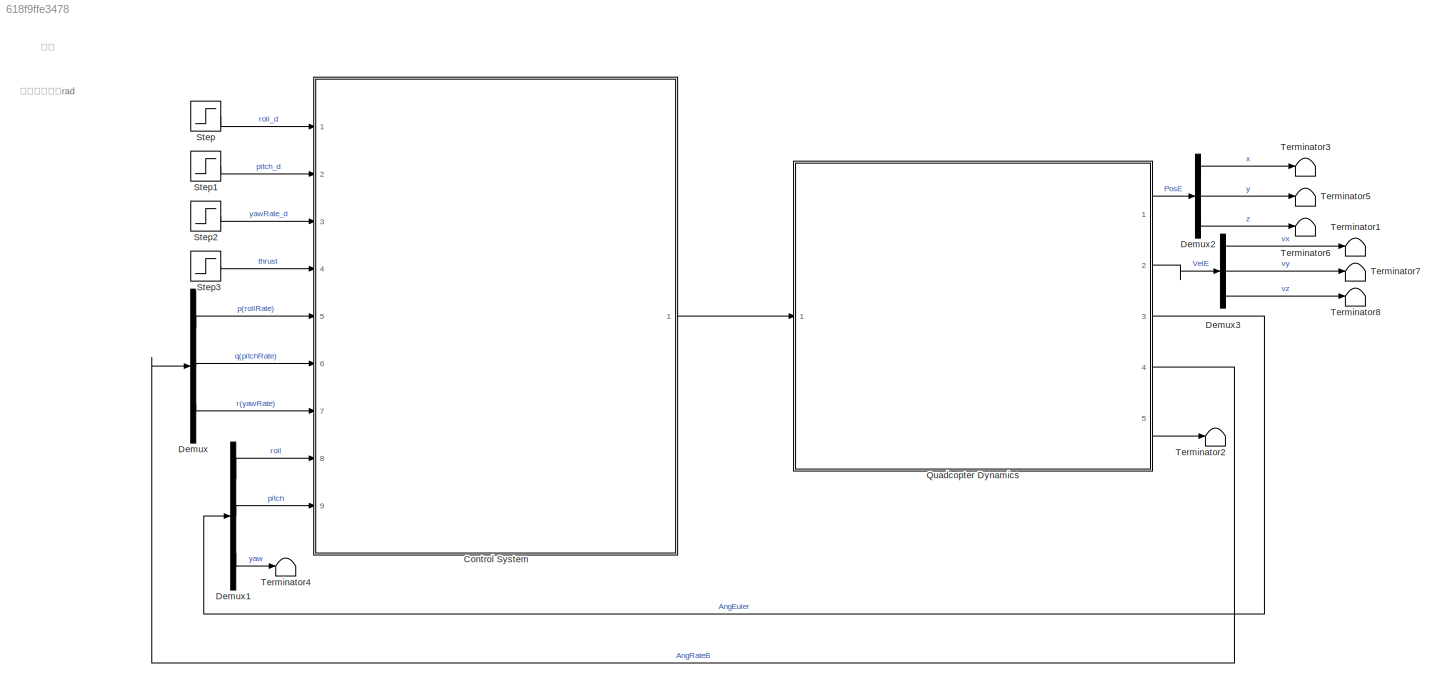
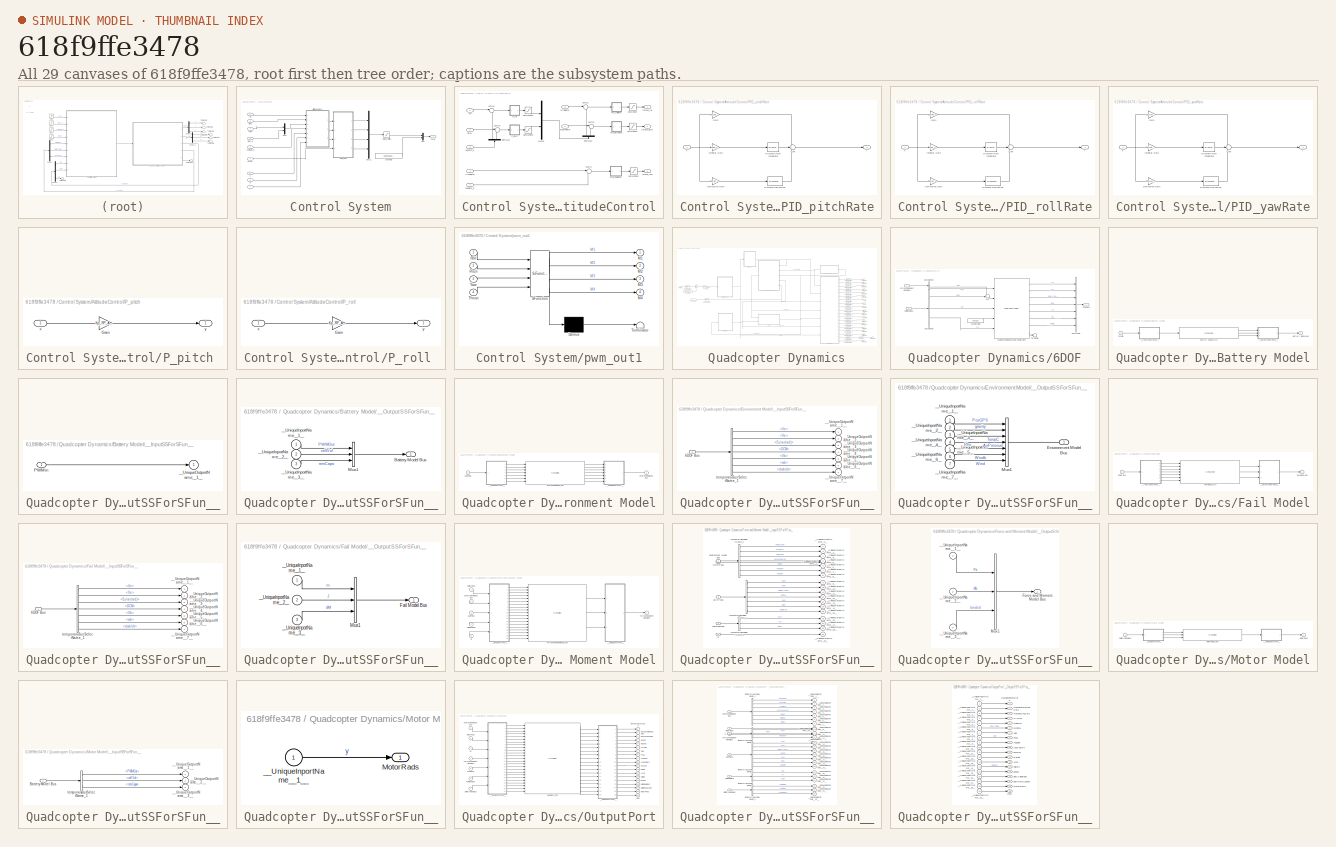
[diagram: thumbnail index - all 29 canvases of the model, root first then tree order]
MODEL slx_618f9ffe3478
KIND model
CONFIG AbsTol = auto
CONFIG EnableMultiTasking = off
CONFIG FixedStep = 0.001
CONFIG InitFcn = Init_control;
CONFIG MaxStep = auto
CONFIG MinStep = auto
CONFIG RelTol = 1e-3
CONFIG SampleTimeConstraint = Unconstrained
CONFIG Solver = ode4
CONFIG SolverName = ode4
CONFIG StartTime = 0.0
CONFIG StopTime = 5
BLOCK [SubSystem] Control System
  Ports = [9, 1]
  RequestExecContextInheritance = off
  Variant = off
BLOCK [SubSystem] Control System/AttitudeControl
  Ports = [7, 3]
  RequestExecContextInheritance = off
  Variant = off
BLOCK [Demux] Control System/AttitudeControl/Demux12
  DisplayOption = bar
  Outputs = 2
  Ports = [1, 2]
BLOCK [Demux] Control System/AttitudeControl/Demux16
  DisplayOption = bar
  Outputs = 2
  Ports = [1, 2]
BLOCK [Mux] Control System/AttitudeControl/Mux22
  DisplayOption = bar
  Inputs = 2
  Ports = [2, 1]
BLOCK [SubSystem] Control System/AttitudeControl/PID_pitchRate
  Ports = [1, 1]
  RequestExecContextInheritance = off
  Variant = off
BLOCK [Gain] Control System/AttitudeControl/PID_pitchRate/Derivative Gain
  DisableCoverage = on
  Gain = Kd_RP_AgngleRate
  OutDataTypeStr = Inherit: Inherit via internal rule
  OutMax = 100
  OutMin = -100
  ParamDataTypeStr = Inherit: Inherit via internal rule
  ParamMax = 100
  ParamMin = -100
  SaturateOnIntegerOverflow = off
BLOCK [Reference] Control System/AttitudeControl/PID_pitchRate/Discrete Derivative  REF=simulink/Discrete/Discrete Derivative
  Ports = [1, 1]
  SourceBlock = simulink/Discrete/Discrete Derivative
  SourceType = Discrete Derivative
BLOCK [DiscreteIntegrator] Control System/AttitudeControl/PID_pitchRate/Discrete-Time Integrator
  ICPrevOutput = DiscIntNeverNeededParam
  ICPrevScaledInput = DiscIntNeverNeededParam
  InitialConditionSetting = State (most efficient)
  LimitOutput = on
  LowerSaturationLimit = Saturation_I_RP_Min
  Ports = [1, 1]
  SampleTime = -1
  UpperSaturationLimit = Saturation_I_RP_Max
BLOCK [Gain] Control System/AttitudeControl/PID_pitchRate/Gain
  Gain = Kp_RP_AgngleRate
  OutDataTypeStr = Inherit: Inherit via internal rule
  ParamDataTypeStr = Inherit: Inherit via internal rule
  SaturateOnIntegerOverflow = off
BLOCK [Gain] Control System/AttitudeControl/PID_pitchRate/Integral Gain
  DisableCoverage = on
  Gain = Ki_RP_AgngleRate
  OutDataTypeStr = Inherit: Inherit via internal rule
  ParamDataTypeStr = Inherit: Inherit via internal rule
  SaturateOnIntegerOverflow = off
BLOCK [Sum] Control System/AttitudeControl/PID_pitchRate/Sum
  IconShape = round
  InputSameDT = off
  Inputs = +++
  OutDataTypeStr = Inherit: Inherit via internal rule
  Ports = [3, 1]
  SaturateOnIntegerOverflow = off
BLOCK [Inport] Control System/AttitudeControl/PID_pitchRate/x
  IconDisplay = Port number
BLOCK [Outport] Control System/AttitudeControl/PID_pitchRate/y
  IconDisplay = Port number
  InitialOutput = 0
BLOCK [SubSystem] Control System/AttitudeControl/PID_rollRate
  Ports = [1, 1]
  RequestExecContextInheritance = off
  Variant = off
BLOCK [Gain] Control System/AttitudeControl/PID_rollRate/Derivative Gain
  DisableCoverage = on
  Gain = Kd_RP_AgngleRate
  OutDataTypeStr = Inherit: Inherit via internal rule
  OutMax = 100
  OutMin = -100
  ParamDataTypeStr = Inherit: Inherit via internal rule
  ParamMax = 100
  ParamMin = -100
  SaturateOnIntegerOverflow = off
BLOCK [Reference] Control System/AttitudeControl/PID_rollRate/Discrete Derivative  REF=simulink/Discrete/Discrete Derivative
  Ports = [1, 1]
  SourceBlock = simulink/Discrete/Discrete Derivative
  SourceType = Discrete Derivative
BLOCK [DiscreteIntegrator] Control System/AttitudeControl/PID_rollRate/Discrete-Time Integrator
  ICPrevOutput = DiscIntNeverNeededParam
  ICPrevScaledInput = DiscIntNeverNeededParam
  InitialConditionSetting = State (most efficient)
  LimitOutput = on
  LowerSaturationLimit = Saturation_I_RP_Min
  Ports = [1, 1]
  SampleTime = -1
  UpperSaturationLimit = Saturation_I_RP_Max
BLOCK [Gain] Control System/AttitudeControl/PID_rollRate/Gain
  Gain = Kp_RP_AgngleRate
  OutDataTypeStr = Inherit: Inherit via internal rule
  ParamDataTypeStr = Inherit: Inherit via internal rule
  SaturateOnIntegerOverflow = off
BLOCK [Gain] Control System/AttitudeControl/PID_rollRate/Integral Gain
  DisableCoverage = on
  Gain = Ki_RP_AgngleRate
  OutDataTypeStr = Inherit: Inherit via internal rule
  ParamDataTypeStr = Inherit: Inherit via internal rule
  SaturateOnIntegerOverflow = off
BLOCK [Sum] Control System/AttitudeControl/PID_rollRate/Sum
  IconShape = round
  InputSameDT = off
  Inputs = +++
  OutDataTypeStr = Inherit: Inherit via internal rule
  Ports = [3, 1]
  SaturateOnIntegerOverflow = off
BLOCK [Inport] Control System/AttitudeControl/PID_rollRate/x
  IconDisplay = Port number
BLOCK [Outport] Control System/AttitudeControl/PID_rollRate/y
  IconDisplay = Port number
  InitialOutput = 0
BLOCK [SubSystem] Control System/AttitudeControl/PID_yawRate
  Ports = [1, 1]
  RequestExecContextInheritance = off
  Variant = off
BLOCK [Gain] Control System/AttitudeControl/PID_yawRate/Derivative Gain
  DisableCoverage = on
  Gain = Kd_YAW_AngleRate
  OutDataTypeStr = Inherit: Inherit via internal rule
  OutMax = 100
  OutMin = -100
  ParamDataTypeStr = Inherit: Inherit via internal rule
  ParamMax = 100
  ParamMin = -100
  SaturateOnIntegerOverflow = off
BLOCK [Reference] Control System/AttitudeControl/PID_yawRate/Discrete Derivative  REF=simulink/Discrete/Discrete Derivative
  Ports = [1, 1]
  SourceBlock = simulink/Discrete/Discrete Derivative
  SourceType = Discrete Derivative
BLOCK [DiscreteIntegrator] Control System/AttitudeControl/PID_yawRate/Discrete-Time Integrator
  ICPrevOutput = DiscIntNeverNeededParam
  ICPrevScaledInput = DiscIntNeverNeededParam
  InitialConditionSetting = State (most efficient)
  LimitOutput = on
  LowerSaturationLimit = Saturation_I_Y_Min
  Ports = [1, 1]
  SampleTime = -1
  UpperSaturationLimit = Saturation_I_Y_Max
BLOCK [Gain] Control System/AttitudeControl/PID_yawRate/Gain
  Gain = Kp_YAW_AngleRate
  OutDataTypeStr = Inherit: Inherit via internal rule
  ParamDataTypeStr = Inherit: Inherit via internal rule
  SaturateOnIntegerOverflow = off
BLOCK [Gain] Control System/AttitudeControl/PID_yawRate/Integral Gain
  DisableCoverage = on
  Gain = Ki_YAW_AngleRate
  OutDataTypeStr = Inherit: Inherit via internal rule
  ParamDataTypeStr = Inherit: Inherit via internal rule
  SaturateOnIntegerOverflow = off
BLOCK [Sum] Control System/AttitudeControl/PID_yawRate/Sum
  IconShape = round
  InputSameDT = off
  Inputs = +++
  OutDataTypeStr = Inherit: Inherit via internal rule
  Ports = [3, 1]
  SaturateOnIntegerOverflow = off
BLOCK [Inport] Control System/AttitudeControl/PID_yawRate/x
  IconDisplay = Port number
BLOCK [Outport] Control System/AttitudeControl/PID_yawRate/y
  IconDisplay = Port number
  InitialOutput = 0
BLOCK [SubSystem] Control System/AttitudeControl/P_pitch 
  Ports = [1, 1]
  RequestExecContextInheritance = off
  Variant = off
BLOCK [Gain] Control System/AttitudeControl/P_pitch /Gain
  Gain = Kp_RP_ANGLE
  OutDataTypeStr = Inherit: Inherit via internal rule
  ParamDataTypeStr = Inherit: Inherit via internal rule
  SaturateOnIntegerOverflow = off
BLOCK [Inport] Control System/AttitudeControl/P_pitch /x
  IconDisplay = Port number
BLOCK [Outport] Control System/AttitudeControl/P_pitch /y
  IconDisplay = Port number
  InitialOutput = 0
BLOCK [SubSystem] Control System/AttitudeControl/P_roll 
  Ports = [1, 1]
  RequestExecContextInheritance = off
  Variant = off
BLOCK [Gain] Control System/AttitudeControl/P_roll /Gain
  Gain = Kp_RP_ANGLE
  OutDataTypeStr = Inherit: Inherit via internal rule
  ParamDataTypeStr = Inherit: Inherit via internal rule
  SaturateOnIntegerOverflow = off
BLOCK [Inport] Control System/AttitudeControl/P_roll /x
  IconDisplay = Port number
BLOCK [Outport] Control System/AttitudeControl/P_roll /y
  IconDisplay = Port number
  InitialOutput = 0
BLOCK [Saturate] Control System/AttitudeControl/Saturation
  InputPortMap = u0
  LowerLimit = -1
  Ports = [1, 1]
  UpperLimit = 1
BLOCK [Saturate] Control System/AttitudeControl/Saturation1
  InputPortMap = u0
  LowerLimit = -1
  Ports = [1, 1]
  UpperLimit = 1
BLOCK [Saturate] Control System/AttitudeControl/Saturation2
  InputPortMap = u0
  Ports = [1, 1]
BLOCK [Saturate] Control System/AttitudeControl/Saturation3
  InputPortMap = u0
  LowerLimit = -MAX_CONTROL_ANGLE_RATE_PITCH
  Ports = [1, 1]
  UpperLimit = MAX_CONTROL_ANGLE_RATE_PITCH
BLOCK [Saturate] Control System/AttitudeControl/Saturation4
  InputPortMap = u0
  LowerLimit = -MAX_CONTROL_ANGLE_RATE_ROLL
  Ports = [1, 1]
  UpperLimit = MAX_CONTROL_ANGLE_RATE_ROLL
BLOCK [Sum] Control System/AttitudeControl/Sum17
  IconShape = round
  InputSameDT = off
  Inputs = |-+
  OutDataTypeStr = Inherit: Inherit via internal rule
  Ports = [2, 1]
  SaturateOnIntegerOverflow = off
BLOCK [Sum] Control System/AttitudeControl/Sum18
  IconShape = round
  InputSameDT = off
  Inputs = |-+
  OutDataTypeStr = Inherit: Inherit via internal rule
  Ports = [2, 1]
  SaturateOnIntegerOverflow = off
BLOCK [Sum] Control System/AttitudeControl/Sum19
  IconShape = round
  InputSameDT = off
  Inputs = |-+
  OutDataTypeStr = Inherit: Inherit via internal rule
  Ports = [2, 1]
  SaturateOnIntegerOverflow = off
BLOCK [Sum] Control System/AttitudeControl/Sum21
  IconShape = round
  InputSameDT = off
  Inputs = |-+
  OutDataTypeStr = Inherit: Inherit via internal rule
  Ports = [2, 1]
  SaturateOnIntegerOverflow = off
BLOCK [Sum] Control System/AttitudeControl/Sum22
  IconShape = round
  InputSameDT = off
  Inputs = |-+
  OutDataTypeStr = Inherit: Inherit via internal rule
  Ports = [2, 1]
  SaturateOnIntegerOverflow = off
BLOCK [Inport] Control System/AttitudeControl/p(rollRate)
  IconDisplay = Port number
  Port = 5
BLOCK [Inport] Control System/AttitudeControl/pitch
  IconDisplay = Port number
  Port = 2
BLOCK [Inport] Control System/AttitudeControl/q(pitchRate)
  IconDisplay = Port number
  Port = 6
BLOCK [Inport] Control System/AttitudeControl/r(yawRate)
  IconDisplay = Port number
  Port = 7
BLOCK [Inport] Control System/AttitudeControl/roll
  IconDisplay = Port number
BLOCK [Inport] Control System/AttitudeControl/roll_pitch_d
  IconDisplay = Port number
  Port = 3
BLOCK [Outport] Control System/AttitudeControl/torque_pitch
  IconDisplay = Port number
  Port = 2
BLOCK [Outport] Control System/AttitudeControl/torque_roll
  IconDisplay = Port number
BLOCK [Outport] Control System/AttitudeControl/torque_yaw
  IconDisplay = Port number
  Port = 3
BLOCK [Inport] Control System/AttitudeControl/yawRate_d
  IconDisplay = Port number
  Port = 4
BLOCK [Constant] Control System/Constant2
  Value = [1000;1000;1000;1000]
BLOCK [Mux] Control System/Mux
  DisplayOption = bar
  Inputs = 2
  Ports = [2, 1]
BLOCK [Mux] Control System/Mux1
  DisplayOption = bar
  Inputs = 2
  Ports = [2, 1]
BLOCK [Mux] Control System/Mux12
  DisplayOption = bar
  Ports = [4, 1]
BLOCK [Saturate] Control System/Output_Limits1
  InputPortMap = u0
  LowerLimit = 1000
  Ports = [1, 1]
  UpperLimit = 2000
BLOCK [Outport] Control System/PWM
  IconDisplay = Port number
  SamplingMode = Sample based
  SignalType = real
BLOCK [Inport] Control System/p
  IconDisplay = Port number
  Port = 5
  PortDimensions = 1
  SamplingMode = Sample based
  SignalType = real
BLOCK [Inport] Control System/pitch
  IconDisplay = Port number
  Port = 9
  PortDimensions = 1
  SamplingMode = Sample based
  SignalType = real
BLOCK [Inport] Control System/pitch_d
  IconDisplay = Port number
  Port = 2
  PortDimensions = 1
  SamplingMode = Sample based
  SignalType = real
BLOCK [SubSystem] Control System/pwm_out1
  ErrorFcn = Stateflow.Translate.translate
  PermitHierarchicalResolution = ExplicitOnly
  Ports = [4, 4]
  RequestExecContextInheritance = off
  SFBlockType = MATLAB Function
  SystemSampleTime = 0.004
  Variant = off
BLOCK [Demux] Control System/pwm_out1/ Demux 
  Outputs = 1
  Ports = [1, 1]
BLOCK [S-Function] Control System/pwm_out1/ SFunction 
  EnableBusSupport = on
  FunctionName = sf_sfun
  PortCounts = [4 5]
  Ports = [4, 5]
  SFcnIsStateOwnerBlock = off
  SFunctionDeploymentMode = off
  Tag = Stateflow S-Function e2_1 8
BLOCK [Terminator] Control System/pwm_out1/ Terminator 
BLOCK [Outport] Control System/pwm_out1/M1
  IconDisplay = Port number
BLOCK [Outport] Control System/pwm_out1/M2
  IconDisplay = Port number
  Port = 2
BLOCK [Outport] Control System/pwm_out1/M3
  IconDisplay = Port number
  Port = 3
BLOCK [Outport] Control System/pwm_out1/M4
  IconDisplay = Port number
  Port = 4
BLOCK [Inport] Control System/pwm_out1/Pitch
  IconDisplay = Port number
  Port = 2
BLOCK [Inport] Control System/pwm_out1/Roll
  IconDisplay = Port number
BLOCK [Inport] Control System/pwm_out1/Thrust
  IconDisplay = Port number
  Port = 4
BLOCK [Inport] Control System/pwm_out1/Yaw
  IconDisplay = Port number
  Port = 3
BLOCK [Inport] Control System/q
  IconDisplay = Port number
  Port = 6
  PortDimensions = 1
  SamplingMode = Sample based
  SignalType = real
BLOCK [Inport] Control System/r
  IconDisplay = Port number
  Port = 7
  PortDimensions = 1
  SamplingMode = Sample based
  SignalType = real
BLOCK [Inport] Control System/roll
  IconDisplay = Port number
  Port = 8
  PortDimensions = 1
  SamplingMode = Sample based
  SignalType = real
BLOCK [Inport] Control System/roll_d
  IconDisplay = Port number
  PortDimensions = 1
  SamplingMode = Sample based
  SignalType = real
BLOCK [Inport] Control System/thrust
  IconDisplay = Port number
  Port = 4
  PortDimensions = 1
  SamplingMode = Sample based
  SignalType = real
BLOCK [Inport] Control System/yawRate_d
  IconDisplay = Port number
  Port = 3
  PortDimensions = 1
  SamplingMode = Sample based
  SignalType = real
BLOCK [Demux] Demux
  DisplayOption = bar
  Outputs = 3
  Ports = [1, 3]
BLOCK [Demux] Demux1
  DisplayOption = bar
  Outputs = 3
  Ports = [1, 3]
BLOCK [Demux] Demux2
  DisplayOption = bar
  Outputs = 3
  Ports = [1, 3]
BLOCK [Demux] Demux3
  DisplayOption = bar
  Outputs = 3
  Ports = [1, 3]
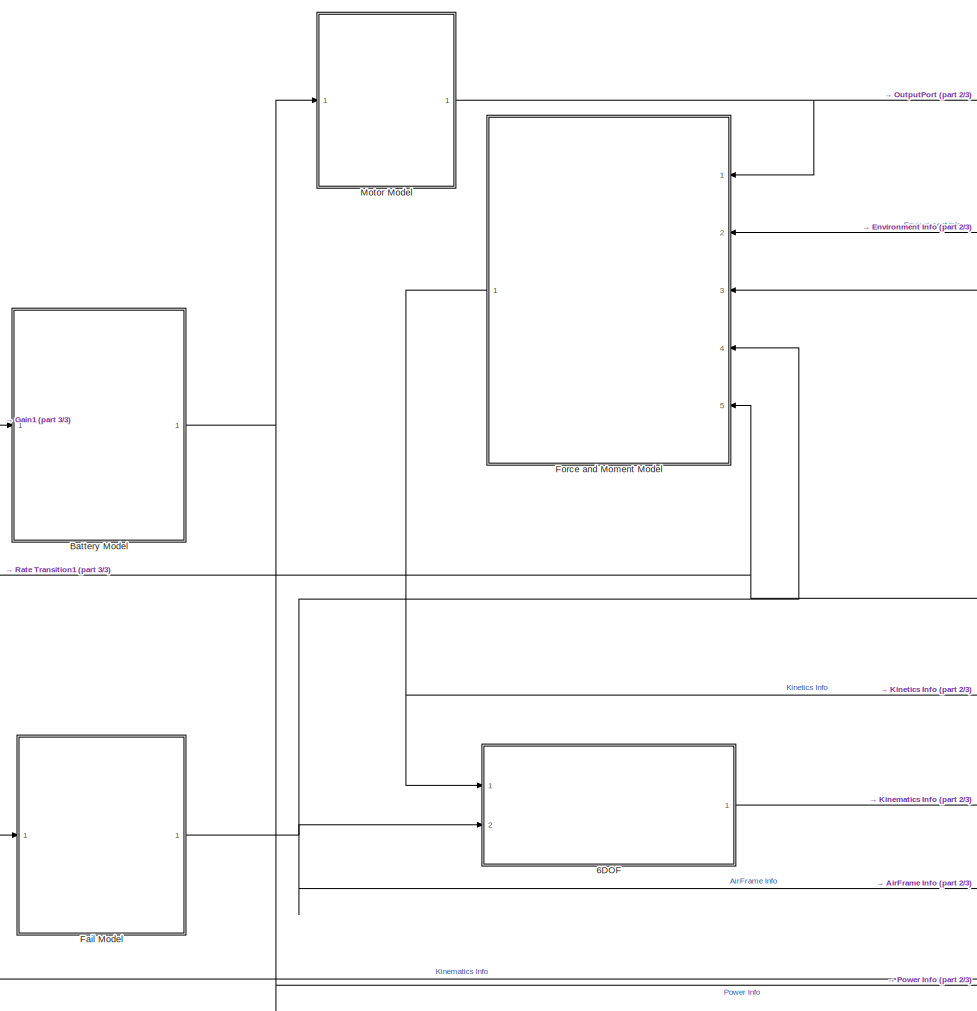
[diagram: Quadcopter Dynamics - part 1/3, center side, full height]
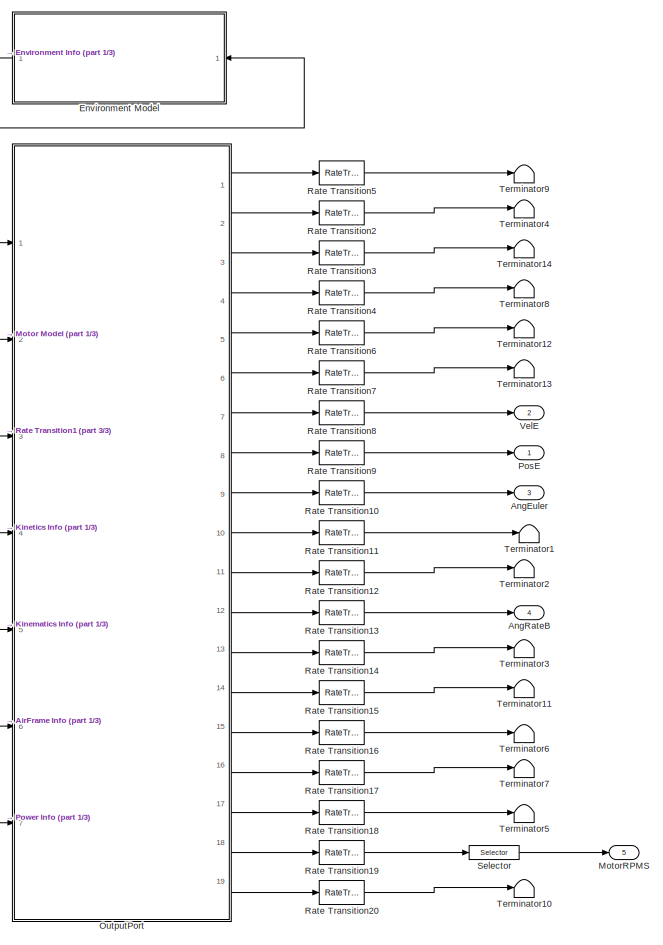
[diagram: Quadcopter Dynamics - part 2/3, right side, full height]
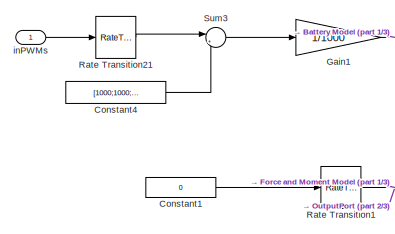
[diagram: Quadcopter Dynamics - part 3/3, middle left region]
BLOCK [SubSystem] Quadcopter Dynamics
  Ports = [1, 5]
  RequestExecContextInheritance = off
  Variant = off
BLOCK [SubSystem] Quadcopter Dynamics/6DOF
  Ports = [2, 1]
  RequestExecContextInheritance = off
  Variant = off
BLOCK [Outport] Quadcopter Dynamics/6DOF/6DOF Bus
  IconDisplay = Port number
BLOCK [BusCreator] Quadcopter Dynamics/6DOF/Bus Creator
  DisplayOption = bar
  InheritFromInputs = on
  Inputs = 7
  Ports = [7, 1]
BLOCK [BusSelector] Quadcopter Dynamics/6DOF/Bus Selector
  OutputSignals = dM,m,J
  Ports = [1, 3]
BLOCK [BusSelector] Quadcopter Dynamics/6DOF/Bus Selector1
  OutputSignals = Fb,Mb
  Ports = [1, 2]
BLOCK [Constant] Quadcopter Dynamics/6DOF/Constant_dI//dt
  Value = zeros(3,3)
BLOCK [Reference] Quadcopter Dynamics/6DOF/Custom Variable Mass 6DOF (Quaternion)  REF=aerolib6dof2/6DOF (Euler Angles)
  Ports = [5, 8]
  SourceBlock = aerolib6dof2/6DOF (Euler Angles)
  SourceType = 6DOF EoM (Body Axis)
BLOCK [Inport] Quadcopter Dynamics/6DOF/Fail Model Bus
  IconDisplay = Port number
  Port = 2
BLOCK [Inport] Quadcopter Dynamics/6DOF/Force and Moment Model Bus
  IconDisplay = Port number
BLOCK [Sum] Quadcopter Dynamics/6DOF/Sum
  IconShape = round
  InputSameDT = off
  Inputs = ++|
  OutDataTypeStr = Inherit: Inherit via internal rule
  Ports = [2, 1]
  SaturateOnIntegerOverflow = off
BLOCK [Terminator] Quadcopter Dynamics/6DOF/Terminator
BLOCK [Outport] Quadcopter Dynamics/AngEuler
  IconDisplay = Port number
  Port = 3
BLOCK [Outport] Quadcopter Dynamics/AngRateB
  IconDisplay = Port number
  Port = 4
BLOCK [SubSystem] Quadcopter Dynamics/Battery Model
  Ports = [1, 1]
  RequestExecContextInheritance = off
  Variant = off
BLOCK [Outport] Quadcopter Dynamics/Battery Model/Battery Model Bus
  IconDisplay = Port number
BLOCK [S-Function] Quadcopter Dynamics/Battery Model/Battery Model_sfcn
  CopyFcn = if ~strcmp(get_param(gcb,'Linkstatus'),'none') && ...\n~strcmp(get_param(gcb,'Linkstatus'),'implicit')      \n  set_param(gcb,'LinkStatus','none');                \nend
  EnableBusSupport = off
  FunctionName = Battery_sf
  Ports = [1, 3]
  SFcnIsStateOwnerBlock = off
  SFunctionDeploymentMode = off
BLOCK [Inport] Quadcopter Dynamics/Battery Model/PWMin
  IconDisplay = Port number
BLOCK [SubSystem] Quadcopter Dynamics/Battery Model/__InputSSForSFun__
  PermitHierarchicalResolution = ExplicitOnly
  Ports = [1, 1]
  RequestExecContextInheritance = off
  Variant = off
BLOCK [Inport] Quadcopter Dynamics/Battery Model/__InputSSForSFun__/PWMin
  IconDisplay = Port number
BLOCK [Outport] Quadcopter Dynamics/Battery Model/__InputSSForSFun__/__UniqueOutportName__1__
  IconDisplay = Port number
BLOCK [SubSystem] Quadcopter Dynamics/Battery Model/__OutputSSForSFun__
  PermitHierarchicalResolution = ExplicitOnly
  Ports = [3, 1]
  RequestExecContextInheritance = off
  Variant = off
BLOCK [Outport] Quadcopter Dynamics/Battery Model/__OutputSSForSFun__/Battery Model Bus
  IconDisplay = Port number
BLOCK [BusCreator] Quadcopter Dynamics/Battery Model/__OutputSSForSFun__/Mux1
  InheritFromInputs = on
  Inputs = 3
  Ports = [3, 1]
BLOCK [Inport] Quadcopter Dynamics/Battery Model/__OutputSSForSFun__/__UniqueInportName__1__
  IconDisplay = Port number
BLOCK [Inport] Quadcopter Dynamics/Battery Model/__OutputSSForSFun__/__UniqueInportName__2__
  IconDisplay = Port number
  Port = 2
BLOCK [Inport] Quadcopter Dynamics/Battery Model/__OutputSSForSFun__/__UniqueInportName__3__
  IconDisplay = Port number
  Port = 3
BLOCK [Constant] Quadcopter Dynamics/Constant1
  Value = 0
BLOCK [Constant] Quadcopter Dynamics/Constant4
  Value = [1000;1000;1000;1000;1000;1000;1000;1000]
BLOCK [SubSystem] Quadcopter Dynamics/Environment Model
  Ports = [1, 1]
  RequestExecContextInheritance = off
  Variant = off
BLOCK [Inport] Quadcopter Dynamics/Environment Model/6DOF Bus
  IconDisplay = Port number
BLOCK [Outport] Quadcopter Dynamics/Environment Model/Environment Model Bus
  IconDisplay = Port number
BLOCK [S-Function] Quadcopter Dynamics/Environment Model/Environment Model_sfcn
  CopyFcn = if ~strcmp(get_param(gcb,'Linkstatus'),'none') && ...\n~strcmp(get_param(gcb,'Linkstatus'),'implicit')      \n  set_param(gcb,'LinkStatus','none');                \nend
  EnableBusSupport = off
  FunctionName = Environment_sf
  Parameters = sfcnParam1, sfcnParam2, sfcnParam3
  Ports = [7, 7]
  SFcnIsStateOwnerBlock = on
  SFcnStateName = DWORK0
  SFunctionDeploymentMode = off
BLOCK [SubSystem] Quadcopter Dynamics/Environment Model/__InputSSForSFun__
  PermitHierarchicalResolution = ExplicitOnly
  Ports = [1, 7]
  RequestExecContextInheritance = off
  Variant = off
BLOCK [Inport] Quadcopter Dynamics/Environment Model/__InputSSForSFun__/6DOF Bus
  IconDisplay = Port number
BLOCK [Outport] Quadcopter Dynamics/Environment Model/__InputSSForSFun__/__UniqueOutportName__1__
  IconDisplay = Port number
BLOCK [Outport] Quadcopter Dynamics/Environment Model/__InputSSForSFun__/__UniqueOutportName__2__
  IconDisplay = Port number
  Port = 2
BLOCK [Outport] Quadcopter Dynamics/Environment Model/__InputSSForSFun__/__UniqueOutportName__3__
  IconDisplay = Port number
  Port = 3
BLOCK [Outport] Quadcopter Dynamics/Environment Model/__InputSSForSFun__/__UniqueOutportName__4__
  IconDisplay = Port number
  Port = 4
BLOCK [Outport] Quadcopter Dynamics/Environment Model/__InputSSForSFun__/__UniqueOutportName__5__
  IconDisplay = Port number
  Port = 5
BLOCK [Outport] Quadcopter Dynamics/Environment Model/__InputSSForSFun__/__UniqueOutportName__6__
  IconDisplay = Port number
  Port = 6
BLOCK [Outport] Quadcopter Dynamics/Environment Model/__InputSSForSFun__/__UniqueOutportName__7__
  IconDisplay = Port number
  Port = 7
BLOCK [BusSelector] Quadcopter Dynamics/Environment Model/__InputSSForSFun__/temporaryBusSelectName_1
  OutputSignals = Ve,Xe,Eular(rad),DCM,Vb,wb,dwb/dt
  Ports = [1, 7]
BLOCK [SubSystem] Quadcopter Dynamics/Environment Model/__OutputSSForSFun__
  PermitHierarchicalResolution = ExplicitOnly
  Ports = [7, 1]
  RequestExecContextInheritance = off
  Variant = off
BLOCK [Outport] Quadcopter Dynamics/Environment Model/__OutputSSForSFun__/Environment Model Bus
  IconDisplay = Port number
BLOCK [BusCreator] Quadcopter Dynamics/Environment Model/__OutputSSForSFun__/Mux1
  InheritFromInputs = on
  Inputs = 7
  Ports = [7, 1]
BLOCK [Inport] Quadcopter Dynamics/Environment Model/__OutputSSForSFun__/__UniqueInportName__1__
  IconDisplay = Port number
BLOCK [Inport] Quadcopter Dynamics/Environment Model/__OutputSSForSFun__/__UniqueInportName__2__
  IconDisplay = Port number
  Port = 2
BLOCK [Inport] Quadcopter Dynamics/Environment Model/__OutputSSForSFun__/__UniqueInportName__3__
  IconDisplay = Port number
  Port = 3
BLOCK [Inport] Quadcopter Dynamics/Environment Model/__OutputSSForSFun__/__UniqueInportName__4__
  IconDisplay = Port number
  Port = 4
BLOCK [Inport] Quadcopter Dynamics/Environment Model/__OutputSSForSFun__/__UniqueInportName__5__
  IconDisplay = Port number
  Port = 5
BLOCK [Inport] Quadcopter Dynamics/Environment Model/__OutputSSForSFun__/__UniqueInportName__6__
  IconDisplay = Port number
  Port = 6
BLOCK [Inport] Quadcopter Dynamics/Environment Model/__OutputSSForSFun__/__UniqueInportName__7__
  IconDisplay = Port number
  Port = 7
BLOCK [SubSystem] Quadcopter Dynamics/Fail Model
  Ports = [1, 1]
  RequestExecContextInheritance = off
  Variant = off
BLOCK [Inport] Quadcopter Dynamics/Fail Model/6DOF Bus
  IconDisplay = Port number
BLOCK [Outport] Quadcopter Dynamics/Fail Model/Fail Model Bus
  IconDisplay = Port number
BLOCK [S-Function] Quadcopter Dynamics/Fail Model/Fail Model_sfcn
  CopyFcn = if ~strcmp(get_param(gcb,'Linkstatus'),'none') && ...\n~strcmp(get_param(gcb,'Linkstatus'),'implicit')      \n  set_param(gcb,'LinkStatus','none');                \nend
  EnableBusSupport = off
  FunctionName = Fail_sf
  Parameters = sfcnParam1, sfcnParam2, sfcnParam3
  Ports = [7, 3]
  SFcnIsStateOwnerBlock = off
  SFunctionDeploymentMode = off
BLOCK [SubSystem] Quadcopter Dynamics/Fail Model/__InputSSForSFun__
  PermitHierarchicalResolution = ExplicitOnly
  Ports = [1, 7]
  RequestExecContextInheritance = off
  Variant = off
BLOCK [Inport] Quadcopter Dynamics/Fail Model/__InputSSForSFun__/6DOF Bus
  IconDisplay = Port number
BLOCK [Outport] Quadcopter Dynamics/Fail Model/__InputSSForSFun__/__UniqueOutportName__1__
  IconDisplay = Port number
BLOCK [Outport] Quadcopter Dynamics/Fail Model/__InputSSForSFun__/__UniqueOutportName__2__
  IconDisplay = Port number
  Port = 2
BLOCK [Outport] Quadcopter Dynamics/Fail Model/__InputSSForSFun__/__UniqueOutportName__3__
  IconDisplay = Port number
  Port = 3
BLOCK [Outport] Quadcopter Dynamics/Fail Model/__InputSSForSFun__/__UniqueOutportName__4__
  IconDisplay = Port number
  Port = 4
BLOCK [Outport] Quadcopter Dynamics/Fail Model/__InputSSForSFun__/__UniqueOutportName__5__
  IconDisplay = Port number
  Port = 5
BLOCK [Outport] Quadcopter Dynamics/Fail Model/__InputSSForSFun__/__UniqueOutportName__6__
  IconDisplay = Port number
  Port = 6
BLOCK [Outport] Quadcopter Dynamics/Fail Model/__InputSSForSFun__/__UniqueOutportName__7__
  IconDisplay = Port number
  Port = 7
BLOCK [BusSelector] Quadcopter Dynamics/Fail Model/__InputSSForSFun__/temporaryBusSelectName_1
  OutputSignals = Ve,Xe,Eular(rad),DCM,Vb,wb,dwb/dt
  Ports = [1, 7]
BLOCK [SubSystem] Quadcopter Dynamics/Fail Model/__OutputSSForSFun__
  PermitHierarchicalResolution = ExplicitOnly
  Ports = [3, 1]
  RequestExecContextInheritance = off
  Variant = off
BLOCK [Outport] Quadcopter Dynamics/Fail Model/__OutputSSForSFun__/Fail Model Bus
  IconDisplay = Port number
BLOCK [BusCreator] Quadcopter Dynamics/Fail Model/__OutputSSForSFun__/Mux1
  InheritFromInputs = on
  Inputs = 3
  Ports = [3, 1]
BLOCK [Inport] Quadcopter Dynamics/Fail Model/__OutputSSForSFun__/__UniqueInportName__1__
  IconDisplay = Port number
BLOCK [Inport] Quadcopter Dynamics/Fail Model/__OutputSSForSFun__/__UniqueInportName__2__
  IconDisplay = Port number
  Port = 2
BLOCK [Inport] Quadcopter Dynamics/Fail Model/__OutputSSForSFun__/__UniqueInportName__3__
  IconDisplay = Port number
  Port = 3
BLOCK [SubSystem] Quadcopter Dynamics/Force and Moment Model
  Ports = [5, 1]
  RequestExecContextInheritance = off
  Variant = off
BLOCK [Inport] Quadcopter Dynamics/Force and Moment Model/6DOF Bus
  IconDisplay = Port number
  Port = 3
BLOCK [Inport] Quadcopter Dynamics/Force and Moment Model/Environment Model Bus
  IconDisplay = Port number
  Port = 2
BLOCK [Inport] Quadcopter Dynamics/Force and Moment Model/Fail Model Bus
  IconDisplay = Port number
  Port = 4
BLOCK [Outport] Quadcopter Dynamics/Force and Moment Model/Force and Moment Model Bus
  IconDisplay = Port number
BLOCK [S-Function] Quadcopter Dynamics/Force and Moment Model/Force and Moment Model_sfcn
  CopyFcn = if ~strcmp(get_param(gcb,'Linkstatus'),'none') && ...\n~strcmp(get_param(gcb,'Linkstatus'),'implicit')      \n  set_param(gcb,'LinkStatus','none');                \nend
  EnableBusSupport = off
  FunctionName = Force_sf
  Parameters = sfcnParam1, sfcnParam2, sfcnParam3, sfcnParam4, sfcnParam5, sfcnParam6, sfcnParam7, sfcnParam8
  Ports = [19, 3]
  SFcnIsStateOwnerBlock = off
  SFunctionDeploymentMode = off
BLOCK [Inport] Quadcopter Dynamics/Force and Moment Model/MotorRads
  IconDisplay = Port number
BLOCK [SubSystem] Quadcopter Dynamics/Force and Moment Model/__InputSSForSFun__
  PermitHierarchicalResolution = ExplicitOnly
  Ports = [5, 19]
  RequestExecContextInheritance = off
  Variant = off
BLOCK [Inport] Quadcopter Dynamics/Force and Moment Model/__InputSSForSFun__/6DOF Bus
  IconDisplay = Port number
  Port = 3
BLOCK [Inport] Quadcopter Dynamics/Force and Moment Model/__InputSSForSFun__/Environment Model Bus
  IconDisplay = Port number
  Port = 2
BLOCK [Inport] Quadcopter Dynamics/Force and Moment Model/__InputSSForSFun__/Fail Model Bus
  IconDisplay = Port number
  Port = 4
BLOCK [Inport] Quadcopter Dynamics/Force and Moment Model/__InputSSForSFun__/MotorRads
  IconDisplay = Port number
BLOCK [Outport] Quadcopter Dynamics/Force and Moment Model/__InputSSForSFun__/__UniqueOutportName__10__
  IconDisplay = Port number
  Port = 10
BLOCK [Outport] Quadcopter Dynamics/Force and Moment Model/__InputSSForSFun__/__UniqueOutportName__11__
  IconDisplay = Port number
  Port = 11
BLOCK [Outport] Quadcopter Dynamics/Force and Moment Model/__InputSSForSFun__/__UniqueOutportName__12__
  IconDisplay = Port number
  Port = 12
BLOCK [Outport] Quadcopter Dynamics/Force and Moment Model/__InputSSForSFun__/__UniqueOutportName__13__
  IconDisplay = Port number
  Port = 13
BLOCK [Outport] Quadcopter Dynamics/Force and Moment Model/__InputSSForSFun__/__UniqueOutportName__14__
  IconDisplay = Port number
  Port = 14
BLOCK [Outport] Quadcopter Dynamics/Force and Moment Model/__InputSSForSFun__/__UniqueOutportName__15__
  IconDisplay = Port number
  Port = 15
BLOCK [Outport] Quadcopter Dynamics/Force and Moment Model/__InputSSForSFun__/__UniqueOutportName__16__
  IconDisplay = Port number
  Port = 16
BLOCK [Outport] Quadcopter Dynamics/Force and Moment Model/__InputSSForSFun__/__UniqueOutportName__17__
  IconDisplay = Port number
  Port = 17
BLOCK [Outport] Quadcopter Dynamics/Force and Moment Model/__InputSSForSFun__/__UniqueOutportName__18__
  IconDisplay = Port number
  Port = 18
BLOCK [Outport] Quadcopter Dynamics/Force and Moment Model/__InputSSForSFun__/__UniqueOutportName__19__
  IconDisplay = Port number
  Port = 19
BLOCK [Outport] Quadcopter Dynamics/Force and Moment Model/__InputSSForSFun__/__UniqueOutportName__1__
  IconDisplay = Port number
BLOCK [Outport] Quadcopter Dynamics/Force and Moment Model/__InputSSForSFun__/__UniqueOutportName__2__
  IconDisplay = Port number
  Port = 2
BLOCK [Outport] Quadcopter Dynamics/Force and Moment Model/__InputSSForSFun__/__UniqueOutportName__3__
  IconDisplay = Port number
  Port = 3
BLOCK [Outport] Quadcopter Dynamics/Force and Moment Model/__InputSSForSFun__/__UniqueOutportName__4__
  IconDisplay = Port number
  Port = 4
BLOCK [Outport] Quadcopter Dynamics/Force and Moment Model/__InputSSForSFun__/__UniqueOutportName__5__
  IconDisplay = Port number
  Port = 5
BLOCK [Outport] Quadcopter Dynamics/Force and Moment Model/__InputSSForSFun__/__UniqueOutportName__6__
  IconDisplay = Port number
  Port = 6
BLOCK [Outport] Quadcopter Dynamics/Force and Moment Model/__InputSSForSFun__/__UniqueOutportName__7__
  IconDisplay = Port number
  Port = 7
BLOCK [Outport] Quadcopter Dynamics/Force and Moment Model/__InputSSForSFun__/__UniqueOutportName__8__
  IconDisplay = Port number
  Port = 8
BLOCK [Outport] Quadcopter Dynamics/Force and Moment Model/__InputSSForSFun__/__UniqueOutportName__9__
  IconDisplay = Port number
  Port = 9
BLOCK [Inport] Quadcopter Dynamics/Force and Moment Model/__InputSSForSFun__/tZ 
  IconDisplay = Port number
  Port = 5
BLOCK [BusSelector] Quadcopter Dynamics/Force and Moment Model/__InputSSForSFun__/temporaryBusSelectName_1
  OutputSignals = PosGPS,gravity,TempC,AirPressure,Rho,Windb,Wind
  Ports = [1, 7]
BLOCK [BusSelector] Quadcopter Dynamics/Force and Moment Model/__InputSSForSFun__/temporaryBusSelectName_2
  OutputSignals = Ve,Xe,Eular(rad),DCM,Vb,wb,dwb/dt
  Ports = [1, 7]
BLOCK [BusSelector] Quadcopter Dynamics/Force and Moment Model/__InputSSForSFun__/temporaryBusSelectName_3
  OutputSignals = m,J,dM
  Ports = [1, 3]
BLOCK [SubSystem] Quadcopter Dynamics/Force and Moment Model/__OutputSSForSFun__
  PermitHierarchicalResolution = ExplicitOnly
  Ports = [3, 1]
  RequestExecContextInheritance = off
  Variant = off
BLOCK [Outport] Quadcopter Dynamics/Force and Moment Model/__OutputSSForSFun__/Force and Moment Model Bus
  IconDisplay = Port number
BLOCK [BusCreator] Quadcopter Dynamics/Force and Moment Model/__OutputSSForSFun__/Mux1
  InheritFromInputs = on
  Inputs = 3
  Ports = [3, 1]
BLOCK [Inport] Quadcopter Dynamics/Force and Moment Model/__OutputSSForSFun__/__UniqueInportName__1__
  IconDisplay = Port number
BLOCK [Inport] Quadcopter Dynamics/Force and Moment Model/__OutputSSForSFun__/__UniqueInportName__2__
  IconDisplay = Port number
  Port = 2
BLOCK [Inport] Quadcopter Dynamics/Force and Moment Model/__OutputSSForSFun__/__UniqueInportName__3__
  IconDisplay = Port number
  Port = 3
BLOCK [Inport] Quadcopter Dynamics/Force and Moment Model/tZ 
  IconDisplay = Port number
  Port = 5
BLOCK [Gain] Quadcopter Dynamics/Gain1
  Gain = 1/1000
  OutDataTypeStr = Inherit: Inherit via internal rule
  ParamDataTypeStr = Inherit: Inherit via internal rule
  SaturateOnIntegerOverflow = off
BLOCK [SubSystem] Quadcopter Dynamics/Motor Model
  Ports = [1, 1]
  RequestExecContextInheritance = off
  Variant = off
BLOCK [Inport] Quadcopter Dynamics/Motor Model/Battery Model Bus
  IconDisplay = Port number
BLOCK [S-Function] Quadcopter Dynamics/Motor Model/Motor Model_sfcn
  CopyFcn = if ~strcmp(get_param(gcb,'Linkstatus'),'none') && ...\n~strcmp(get_param(gcb,'Linkstatus'),'implicit')      \n  set_param(gcb,'LinkStatus','none');                \nend
  EnableBusSupport = off
  FunctionName = Motor_sf
  Parameters = sfcnParam1, sfcnParam2, sfcnParam3, sfcnParam4, sfcnParam5
  Ports = [3, 1]
  SFcnIsStateOwnerBlock = off
  SFunctionDeploymentMode = off
BLOCK [Outport] Quadcopter Dynamics/Motor Model/MotorRads
  IconDisplay = Port number
BLOCK [SubSystem] Quadcopter Dynamics/Motor Model/__InputSSForSFun__
  PermitHierarchicalResolution = ExplicitOnly
  Ports = [1, 3]
  RequestExecContextInheritance = off
  Variant = off
BLOCK [Inport] Quadcopter Dynamics/Motor Model/__InputSSForSFun__/Battery Model Bus
  IconDisplay = Port number
BLOCK [Outport] Quadcopter Dynamics/Motor Model/__InputSSForSFun__/__UniqueOutportName__1__
  IconDisplay = Port number
BLOCK [Outport] Quadcopter Dynamics/Motor Model/__InputSSForSFun__/__UniqueOutportName__2__
  IconDisplay = Port number
  Port = 2
BLOCK [Outport] Quadcopter Dynamics/Motor Model/__InputSSForSFun__/__UniqueOutportName__3__
  IconDisplay = Port number
  Port = 3
BLOCK [BusSelector] Quadcopter Dynamics/Motor Model/__InputSSForSFun__/temporaryBusSelectName_1
  OutputSignals = PWMOut,cellVol,remCapa
  Ports = [1, 3]
BLOCK [SubSystem] Quadcopter Dynamics/Motor Model/__OutputSSForSFun__
  PermitHierarchicalResolution = ExplicitOnly
  Ports = [1, 1]
  RequestExecContextInheritance = off
  Variant = off
BLOCK [Outport] Quadcopter Dynamics/Motor Model/__OutputSSForSFun__/MotorRads
  IconDisplay = Port number
BLOCK [Inport] Quadcopter Dynamics/Motor Model/__OutputSSForSFun__/__UniqueInportName__1__
  IconDisplay = Port number
BLOCK [Outport] Quadcopter Dynamics/MotorRPMS
  IconDisplay = Port number
  Port = 5
BLOCK [SubSystem] Quadcopter Dynamics/OutputPort
  Ports = [7, 19]
  RequestExecContextInheritance = off
  Variant = off
BLOCK [Inport] Quadcopter Dynamics/OutputPort/6DOF Bus
  IconDisplay = Port number
  Port = 5
BLOCK [Outport] Quadcopter Dynamics/OutputPort/AccB
  IconDisplay = Port number
  Port = 13
BLOCK [Outport] Quadcopter Dynamics/OutputPort/AngEuler
  IconDisplay = Port number
  Port = 9
BLOCK [Outport] Quadcopter Dynamics/OutputPort/AngQuatern
  IconDisplay = Port number
  Port = 10
BLOCK [Outport] Quadcopter Dynamics/OutputPort/BattCellVoltage
  IconDisplay = Port number
  Port = 16
BLOCK [Outport] Quadcopter Dynamics/OutputPort/BattRemCapacity
  IconDisplay = Port number
  Port = 17
BLOCK [Inport] Quadcopter Dynamics/OutputPort/Battery Model Bus
  IconDisplay = Port number
  Port = 7
BLOCK [Inport] Quadcopter Dynamics/OutputPort/Environment Model Bus
  IconDisplay = Port number
BLOCK [Inport] Quadcopter Dynamics/OutputPort/Fail Model Bus
  IconDisplay = Port number
  Port = 6
BLOCK [Outport] Quadcopter Dynamics/OutputPort/FailInfo
  IconDisplay = Port number
  Port = 14
BLOCK [Inport] Quadcopter Dynamics/OutputPort/Force and Moment Model Bus
  IconDisplay = Port number
  Port = 4
BLOCK [Outport] Quadcopter Dynamics/OutputPort/HILGPS
  BusOutputAsStruct = on
  IconDisplay = Port number
  OutDataTypeStr = Bus: HILGPS
  Port = 4
  SampleTime = [-1 0]
BLOCK [Outport] Quadcopter Dynamics/OutputPort/MagDec
  IconDisplay = Port number
  Port = 5
BLOCK [Outport] Quadcopter Dynamics/OutputPort/MavLinkGPSData
  BusOutputAsStruct = on
  IconDisplay = Port number
  OutDataTypeStr = Bus: MavLinkGPS
  Port = 3
  SampleTime = [-1 0]
BLOCK [Outport] Quadcopter Dynamics/OutputPort/MavLinkSensorData
  BusOutputAsStruct = on
  IconDisplay = Port number
  OutDataTypeStr = Bus: MavLinkSensor
  SampleTime = [-1 0]
BLOCK [Outport] Quadcopter Dynamics/OutputPort/MavLinkStateQuatData
  BusOutputAsStruct = on
  IconDisplay = Port number
  OutDataTypeStr = Bus: MavLinkStateQuat
  Port = 2
  SampleTime = [-1 0]
BLOCK [Outport] Quadcopter Dynamics/OutputPort/MotorRPMS
  IconDisplay = Port number
  Port = 18
BLOCK [Inport] Quadcopter Dynamics/OutputPort/MotorRads
  IconDisplay = Port number
  Port = 2
BLOCK [S-Function] Quadcopter Dynamics/OutputPort/OutputPort_sfcn
  CopyFcn = if ~strcmp(get_param(gcb,'Linkstatus'),'none') && ...\n~strcmp(get_param(gcb,'Linkstatus'),'implicit')      \n  set_param(gcb,'LinkStatus','none');                \nend
  EnableBusSupport = off
  FunctionName = OutputPort_sf
  Parameters = sfcnParam1, sfcnParam2, sfcnParam3
  Ports = [25, 19]
  SFcnIsStateOwnerBlock = on
  SFcnStateName = DWORK0
  SFunctionDeploymentMode = off
BLOCK [Outport] Quadcopter Dynamics/OutputPort/PosE
  IconDisplay = Port number
  Port = 8
BLOCK [Outport] Quadcopter Dynamics/OutputPort/PosGPS
  IconDisplay = Port number
  Port = 11
BLOCK [Outport] Quadcopter Dynamics/OutputPort/RateB
  IconDisplay = Port number
  Port = 12
BLOCK [Outport] Quadcopter Dynamics/OutputPort/SysTime
  IconDisplay = Port number
  Port = 6
BLOCK [Outport] Quadcopter Dynamics/OutputPort/VelE
  IconDisplay = Port number
  Port = 7
BLOCK [SubSystem] Quadcopter Dynamics/OutputPort/__InputSSForSFun__
  PermitHierarchicalResolution = ExplicitOnly
  Ports = [7, 25]
  RequestExecContextInheritance = off
  Variant = off
BLOCK [Inport] Quadcopter Dynamics/OutputPort/__InputSSForSFun__/6DOF Bus
  IconDisplay = Port number
  Port = 5
BLOCK [Inport] Quadcopter Dynamics/OutputPort/__InputSSForSFun__/Battery Model Bus
  IconDisplay = Port number
  Port = 7
BLOCK [Inport] Quadcopter Dynamics/OutputPort/__InputSSForSFun__/Environment Model Bus
  IconDisplay = Port number
BLOCK [Inport] Quadcopter Dynamics/OutputPort/__InputSSForSFun__/Fail Model Bus
  IconDisplay = Port number
  Port = 6
BLOCK [Inport] Quadcopter Dynamics/OutputPort/__InputSSForSFun__/Force and Moment Model Bus
  IconDisplay = Port number
  Port = 4
BLOCK [Inport] Quadcopter Dynamics/OutputPort/__InputSSForSFun__/MotorRads
  IconDisplay = Port number
  Port = 2
BLOCK [Outport] Quadcopter Dynamics/OutputPort/__InputSSForSFun__/__UniqueOutportName__10__
  IconDisplay = Port number
  Port = 10
BLOCK [Outport] Quadcopter Dynamics/OutputPort/__InputSSForSFun__/__UniqueOutportName__11__
  IconDisplay = Port number
  Port = 11
BLOCK [Outport] Quadcopter Dynamics/OutputPort/__InputSSForSFun__/__UniqueOutportName__12__
  IconDisplay = Port number
  Port = 12
BLOCK [Outport] Quadcopter Dynamics/OutputPort/__InputSSForSFun__/__UniqueOutportName__13__
  IconDisplay = Port number
  Port = 13
BLOCK [Outport] Quadcopter Dynamics/OutputPort/__InputSSForSFun__/__UniqueOutportName__14__
  IconDisplay = Port number
  Port = 14
BLOCK [Outport] Quadcopter Dynamics/OutputPort/__InputSSForSFun__/__UniqueOutportName__15__
  IconDisplay = Port number
  Port = 15
BLOCK [Outport] Quadcopter Dynamics/OutputPort/__InputSSForSFun__/__UniqueOutportName__16__
  IconDisplay = Port number
  Port = 16
BLOCK [Outport] Quadcopter Dynamics/OutputPort/__InputSSForSFun__/__UniqueOutportName__17__
  IconDisplay = Port number
  Port = 17
BLOCK [Outport] Quadcopter Dynamics/OutputPort/__InputSSForSFun__/__UniqueOutportName__18__
  IconDisplay = Port number
  Port = 18
BLOCK [Outport] Quadcopter Dynamics/OutputPort/__InputSSForSFun__/__UniqueOutportName__19__
  IconDisplay = Port number
  Port = 19
BLOCK [Outport] Quadcopter Dynamics/OutputPort/__InputSSForSFun__/__UniqueOutportName__1__
  IconDisplay = Port number
BLOCK [Outport] Quadcopter Dynamics/OutputPort/__InputSSForSFun__/__UniqueOutportName__20__
  IconDisplay = Port number
  Port = 20
BLOCK [Outport] Quadcopter Dynamics/OutputPort/__InputSSForSFun__/__UniqueOutportName__21__
  IconDisplay = Port number
  Port = 21
BLOCK [Outport] Quadcopter Dynamics/OutputPort/__InputSSForSFun__/__UniqueOutportName__22__
  IconDisplay = Port number
  Port = 22
BLOCK [Outport] Quadcopter Dynamics/OutputPort/__InputSSForSFun__/__UniqueOutportName__23__
  IconDisplay = Port number
  Port = 23
BLOCK [Outport] Quadcopter Dynamics/OutputPort/__InputSSForSFun__/__UniqueOutportName__24__
  IconDisplay = Port number
  Port = 24
BLOCK [Outport] Quadcopter Dynamics/OutputPort/__InputSSForSFun__/__UniqueOutportName__25__
  IconDisplay = Port number
  Port = 25
BLOCK [Outport] Quadcopter Dynamics/OutputPort/__InputSSForSFun__/__UniqueOutportName__2__
  IconDisplay = Port number
  Port = 2
BLOCK [Outport] Quadcopter Dynamics/OutputPort/__InputSSForSFun__/__UniqueOutportName__3__
  IconDisplay = Port number
  Port = 3
BLOCK [Outport] Quadcopter Dynamics/OutputPort/__InputSSForSFun__/__UniqueOutportName__4__
  IconDisplay = Port number
  Port = 4
BLOCK [Outport] Quadcopter Dynamics/OutputPort/__InputSSForSFun__/__UniqueOutportName__5__
  IconDisplay = Port number
  Port = 5
BLOCK [Outport] Quadcopter Dynamics/OutputPort/__InputSSForSFun__/__UniqueOutportName__6__
  IconDisplay = Port number
  Port = 6
BLOCK [Outport] Quadcopter Dynamics/OutputPort/__InputSSForSFun__/__UniqueOutportName__7__
  IconDisplay = Port number
  Port = 7
BLOCK [Outport] Quadcopter Dynamics/OutputPort/__InputSSForSFun__/__UniqueOutportName__8__
  IconDisplay = Port number
  Port = 8
BLOCK [Outport] Quadcopter Dynamics/OutputPort/__InputSSForSFun__/__UniqueOutportName__9__
  IconDisplay = Port number
  Port = 9
BLOCK [BusSelector] Quadcopter Dynamics/OutputPort/__InputSSForSFun__/temporaryBusSelectName_1
  OutputSignals = PosGPS,gravity,TempC,AirPressure,Rho,Windb,Wind
  Ports = [1, 7]
BLOCK [BusSelector] Quadcopter Dynamics/OutputPort/__InputSSForSFun__/temporaryBusSelectName_2
  OutputSignals = Fb,Mb,landed
  Ports = [1, 3]
BLOCK [BusSelector] Quadcopter Dynamics/OutputPort/__InputSSForSFun__/temporaryBusSelectName_3
  OutputSignals = Ve,Xe,Eular(rad),DCM,Vb,wb,dwb/dt
  Ports = [1, 7]
BLOCK [BusSelector] Quadcopter Dynamics/OutputPort/__InputSSForSFun__/temporaryBusSelectName_4
  OutputSignals = m,J,dM
  Ports = [1, 3]
BLOCK [BusSelector] Quadcopter Dynamics/OutputPort/__InputSSForSFun__/temporaryBusSelectName_5
  OutputSignals = PWMOut,cellVol,remCapa
  Ports = [1, 3]
BLOCK [Inport] Quadcopter Dynamics/OutputPort/__InputSSForSFun__/zt
  IconDisplay = Port number
  Port = 3
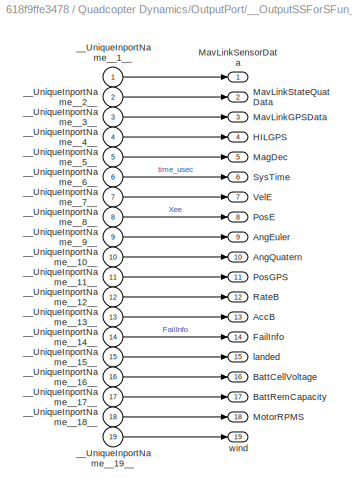
BLOCK [SubSystem] Quadcopter Dynamics/OutputPort/__OutputSSForSFun__
  PermitHierarchicalResolution = ExplicitOnly
  Ports = [19, 19]
  RequestExecContextInheritance = off
  Variant = off
BLOCK [Outport] Quadcopter Dynamics/OutputPort/__OutputSSForSFun__/AccB
  IconDisplay = Port number
  Port = 13
BLOCK [Outport] Quadcopter Dynamics/OutputPort/__OutputSSForSFun__/AngEuler
  IconDisplay = Port number
  Port = 9
BLOCK [Outport] Quadcopter Dynamics/OutputPort/__OutputSSForSFun__/AngQuatern
  IconDisplay = Port number
  Port = 10
BLOCK [Outport] Quadcopter Dynamics/OutputPort/__OutputSSForSFun__/BattCellVoltage
  IconDisplay = Port number
  Port = 16
BLOCK [Outport] Quadcopter Dynamics/OutputPort/__OutputSSForSFun__/BattRemCapacity
  IconDisplay = Port number
  Port = 17
BLOCK [Outport] Quadcopter Dynamics/OutputPort/__OutputSSForSFun__/FailInfo
  IconDisplay = Port number
  Port = 14
BLOCK [Outport] Quadcopter Dynamics/OutputPort/__OutputSSForSFun__/HILGPS
  BusOutputAsStruct = on
  IconDisplay = Port number
  OutDataTypeStr = Bus: HILGPS
  Port = 4
  SampleTime = [-1 0]
BLOCK [Outport] Quadcopter Dynamics/OutputPort/__OutputSSForSFun__/MagDec
  IconDisplay = Port number
  Port = 5
BLOCK [Outport] Quadcopter Dynamics/OutputPort/__OutputSSForSFun__/MavLinkGPSData
  BusOutputAsStruct = on
  IconDisplay = Port number
  OutDataTypeStr = Bus: MavLinkGPS
  Port = 3
  SampleTime = [-1 0]
BLOCK [Outport] Quadcopter Dynamics/OutputPort/__OutputSSForSFun__/MavLinkSensorData
  BusOutputAsStruct = on
  IconDisplay = Port number
  OutDataTypeStr = Bus: MavLinkSensor
  SampleTime = [-1 0]
BLOCK [Outport] Quadcopter Dynamics/OutputPort/__OutputSSForSFun__/MavLinkStateQuatData
  BusOutputAsStruct = on
  IconDisplay = Port number
  OutDataTypeStr = Bus: MavLinkStateQuat
  Port = 2
  SampleTime = [-1 0]
BLOCK [Outport] Quadcopter Dynamics/OutputPort/__OutputSSForSFun__/MotorRPMS
  IconDisplay = Port number
  Port = 18
BLOCK [Outport] Quadcopter Dynamics/OutputPort/__OutputSSForSFun__/PosE
  IconDisplay = Port number
  Port = 8
BLOCK [Outport] Quadcopter Dynamics/OutputPort/__OutputSSForSFun__/PosGPS
  IconDisplay = Port number
  Port = 11
BLOCK [Outport] Quadcopter Dynamics/OutputPort/__OutputSSForSFun__/RateB
  IconDisplay = Port number
  Port = 12
BLOCK [Outport] Quadcopter Dynamics/OutputPort/__OutputSSForSFun__/SysTime
  IconDisplay = Port number
  Port = 6
BLOCK [Outport] Quadcopter Dynamics/OutputPort/__OutputSSForSFun__/VelE
  IconDisplay = Port number
  Port = 7
BLOCK [Inport] Quadcopter Dynamics/OutputPort/__OutputSSForSFun__/__UniqueInportName__10__
  IconDisplay = Port number
  Port = 10
BLOCK [Inport] Quadcopter Dynamics/OutputPort/__OutputSSForSFun__/__UniqueInportName__11__
  IconDisplay = Port number
  Port = 11
BLOCK [Inport] Quadcopter Dynamics/OutputPort/__OutputSSForSFun__/__UniqueInportName__12__
  IconDisplay = Port number
  Port = 12
BLOCK [Inport] Quadcopter Dynamics/OutputPort/__OutputSSForSFun__/__UniqueInportName__13__
  IconDisplay = Port number
  Port = 13
BLOCK [Inport] Quadcopter Dynamics/OutputPort/__OutputSSForSFun__/__UniqueInportName__14__
  IconDisplay = Port number
  Port = 14
BLOCK [Inport] Quadcopter Dynamics/OutputPort/__OutputSSForSFun__/__UniqueInportName__15__
  IconDisplay = Port number
  Port = 15
BLOCK [Inport] Quadcopter Dynamics/OutputPort/__OutputSSForSFun__/__UniqueInportName__16__
  IconDisplay = Port number
  Port = 16
BLOCK [Inport] Quadcopter Dynamics/OutputPort/__OutputSSForSFun__/__UniqueInportName__17__
  IconDisplay = Port number
  Port = 17
BLOCK [Inport] Quadcopter Dynamics/OutputPort/__OutputSSForSFun__/__UniqueInportName__18__
  IconDisplay = Port number
  Port = 18
BLOCK [Inport] Quadcopter Dynamics/OutputPort/__OutputSSForSFun__/__UniqueInportName__19__
  IconDisplay = Port number
  Port = 19
BLOCK [Inport] Quadcopter Dynamics/OutputPort/__OutputSSForSFun__/__UniqueInportName__1__
  IconDisplay = Port number
BLOCK [Inport] Quadcopter Dynamics/OutputPort/__OutputSSForSFun__/__UniqueInportName__2__
  IconDisplay = Port number
  Port = 2
BLOCK [Inport] Quadcopter Dynamics/OutputPort/__OutputSSForSFun__/__UniqueInportName__3__
  IconDisplay = Port number
  Port = 3
BLOCK [Inport] Quadcopter Dynamics/OutputPort/__OutputSSForSFun__/__UniqueInportName__4__
  IconDisplay = Port number
  Port = 4
BLOCK [Inport] Quadcopter Dynamics/OutputPort/__OutputSSForSFun__/__UniqueInportName__5__
  IconDisplay = Port number
  Port = 5
BLOCK [Inport] Quadcopter Dynamics/OutputPort/__OutputSSForSFun__/__UniqueInportName__6__
  IconDisplay = Port number
  Port = 6
BLOCK [Inport] Quadcopter Dynamics/OutputPort/__OutputSSForSFun__/__UniqueInportName__7__
  IconDisplay = Port number
  Port = 7
BLOCK [Inport] Quadcopter Dynamics/OutputPort/__OutputSSForSFun__/__UniqueInportName__8__
  IconDisplay = Port number
  Port = 8
BLOCK [Inport] Quadcopter Dynamics/OutputPort/__OutputSSForSFun__/__UniqueInportName__9__
  IconDisplay = Port number
  Port = 9
BLOCK [Outport] Quadcopter Dynamics/OutputPort/__OutputSSForSFun__/landed
  IconDisplay = Port number
  Port = 15
BLOCK [Outport] Quadcopter Dynamics/OutputPort/__OutputSSForSFun__/wind
  IconDisplay = Port number
  Port = 19
BLOCK [Outport] Quadcopter Dynamics/OutputPort/landed
  IconDisplay = Port number
  Port = 15
BLOCK [Outport] Quadcopter Dynamics/OutputPort/wind
  IconDisplay = Port number
  Port = 19
BLOCK [Inport] Quadcopter Dynamics/OutputPort/zt
  IconDisplay = Port number
  Port = 3
BLOCK [Outport] Quadcopter Dynamics/PosE
  IconDisplay = Port number
BLOCK [RateTransition] Quadcopter Dynamics/Rate Transition1
  OutPortSampleTime = ModelParam_BusSampleRate
BLOCK [RateTransition] Quadcopter Dynamics/Rate Transition10
  OutPortSampleTime = ModelParam_BusSampleRate
BLOCK [RateTransition] Quadcopter Dynamics/Rate Transition11
  OutPortSampleTime = ModelParam_BusSampleRate
BLOCK [RateTransition] Quadcopter Dynamics/Rate Transition12
  OutPortSampleTime = ModelParam_BusSampleRate
BLOCK [RateTransition] Quadcopter Dynamics/Rate Transition13
  OutPortSampleTime = ModelParam_BusSampleRate
BLOCK [RateTransition] Quadcopter Dynamics/Rate Transition14
  OutPortSampleTime = ModelParam_BusSampleRate
BLOCK [RateTransition] Quadcopter Dynamics/Rate Transition15
  OutPortSampleTime = ModelParam_BusSampleRate
BLOCK [RateTransition] Quadcopter Dynamics/Rate Transition16
  OutPortSampleTime = ModelParam_BusSampleRate
BLOCK [RateTransition] Quadcopter Dynamics/Rate Transition17
  OutPortSampleTime = ModelParam_BusSampleRate
BLOCK [RateTransition] Quadcopter Dynamics/Rate Transition18
  OutPortSampleTime = ModelParam_BusSampleRate
BLOCK [RateTransition] Quadcopter Dynamics/Rate Transition19
  OutPortSampleTime = ModelParam_BusSampleRate
BLOCK [RateTransition] Quadcopter Dynamics/Rate Transition2
  OutPortSampleTime = ModelParam_BusSampleRate
BLOCK [RateTransition] Quadcopter Dynamics/Rate Transition20
  OutPortSampleTime = ModelParam_BusSampleRate
BLOCK [RateTransition] Quadcopter Dynamics/Rate Transition21
  OutPortSampleTime = ModelParam_BusSampleRate
BLOCK [RateTransition] Quadcopter Dynamics/Rate Transition3
  OutPortSampleTime = ModelParam_BusSampleRate
BLOCK [RateTransition] Quadcopter Dynamics/Rate Transition4
  OutPortSampleTime = ModelParam_BusSampleRate
BLOCK [RateTransition] Quadcopter Dynamics/Rate Transition5
  OutPortSampleTime = ModelParam_BusSampleRate
BLOCK [RateTransition] Quadcopter Dynamics/Rate Transition6
  OutPortSampleTime = ModelParam_BusSampleRate
BLOCK [RateTransition] Quadcopter Dynamics/Rate Transition7
  OutPortSampleTime = ModelParam_BusSampleRate
BLOCK [RateTransition] Quadcopter Dynamics/Rate Transition8
  OutPortSampleTime = ModelParam_BusSampleRate
BLOCK [RateTransition] Quadcopter Dynamics/Rate Transition9
  OutPortSampleTime = ModelParam_BusSampleRate
BLOCK [Selector] Quadcopter Dynamics/Selector
  IndexOptions = Index vector (dialog)
  Indices = [1 2 3 4]
  InputPortWidth = 8
  OutputSizes = 1
  Ports = [1, 1]
BLOCK [Sum] Quadcopter Dynamics/Sum3
  IconShape = round
  InputSameDT = off
  Inputs = |+-
  OutDataTypeStr = Inherit: Inherit via internal rule
  Ports = [2, 1]
  SaturateOnIntegerOverflow = off
BLOCK [Terminator] Quadcopter Dynamics/Terminator1
BLOCK [Terminator] Quadcopter Dynamics/Terminator10
BLOCK [Terminator] Quadcopter Dynamics/Terminator11
BLOCK [Terminator] Quadcopter Dynamics/Terminator12
BLOCK [Terminator] Quadcopter Dynamics/Terminator13
BLOCK [Terminator] Quadcopter Dynamics/Terminator14
BLOCK [Terminator] Quadcopter Dynamics/Terminator2
BLOCK [Terminator] Quadcopter Dynamics/Terminator3
BLOCK [Terminator] Quadcopter Dynamics/Terminator4
BLOCK [Terminator] Quadcopter Dynamics/Terminator5
BLOCK [Terminator] Quadcopter Dynamics/Terminator6
BLOCK [Terminator] Quadcopter Dynamics/Terminator7
BLOCK [Terminator] Quadcopter Dynamics/Terminator8
BLOCK [Terminator] Quadcopter Dynamics/Terminator9
BLOCK [Outport] Quadcopter Dynamics/VelE
  IconDisplay = Port number
  Port = 2
BLOCK [Inport] Quadcopter Dynamics/inPWMs
  IconDisplay = Port number
  PortDimensions = 8
BLOCK [Step] Step
  After = 0
  SampleTime = 0
  Time = 0
BLOCK [Step] Step1
  After = 0
  SampleTime = 0
  Time = 0
BLOCK [Step] Step2
  After = 0
  SampleTime = 0
  Time = 0
BLOCK [Step] Step3
  After = 0.6085
  SampleTime = 0
  Time = 0
BLOCK [Terminator] Terminator1
BLOCK [Terminator] Terminator2
BLOCK [Terminator] Terminator3
BLOCK [Terminator] Terminator4
BLOCK [Terminator] Terminator5
BLOCK [Terminator] Terminator6
BLOCK [Terminator] Terminator7
BLOCK [Terminator] Terminator8
ANNOTATION (root): 输入 期望滚转角，rad 期望俯仰角，rad 期望偏航角速率，rad/s 油门指令，(0,1)
LINE Control System/AttitudeControl/Demux12:1 -> Control System/AttitudeControl/Sum18:2
LINE Control System/AttitudeControl/Demux12:2 -> Control System/AttitudeControl/Sum19:2
LINE Control System/AttitudeControl/Demux16:1 -> Control System/AttitudeControl/Sum21:2
LINE Control System/AttitudeControl/Demux16:2 -> Control System/AttitudeControl/Sum22:2
LINE Control System/AttitudeControl/Mux22:1 -> Control System/AttitudeControl/Demux16:1
LINE Control System/AttitudeControl/PID_pitchRate/Derivative Gain:1 -> Control System/AttitudeControl/PID_pitchRate/Discrete Derivative:1
LINE Control System/AttitudeControl/PID_pitchRate/Discrete Derivative:1 -> Control System/AttitudeControl/PID_pitchRate/Sum:3
LINE Control System/AttitudeControl/PID_pitchRate/Discrete-Time Integrator:1 -> Control System/AttitudeControl/PID_pitchRate/Sum:2
LINE Control System/AttitudeControl/PID_pitchRate/Gain:1 -> Control System/AttitudeControl/PID_pitchRate/Sum:1
LINE Control System/AttitudeControl/PID_pitchRate/Integral Gain:1 -> Control System/AttitudeControl/PID_pitchRate/Discrete-Time Integrator:1
LINE Control System/AttitudeControl/PID_pitchRate/Sum:1 -> Control System/AttitudeControl/PID_pitchRate/y:1
NET Control System/AttitudeControl/PID_pitchRate/x:1 -> Control System/AttitudeControl/PID_pitchRate/Derivative Gain:1, Control System/AttitudeControl/PID_pitchRate/Gain:1, Control System/AttitudeControl/PID_pitchRate/Integral Gain:1
LINE Control System/AttitudeControl/PID_pitchRate:1 -> Control System/AttitudeControl/Saturation1:1
LINE Control System/AttitudeControl/PID_rollRate/Derivative Gain:1 -> Control System/AttitudeControl/PID_rollRate/Discrete Derivative:1
LINE Control System/AttitudeControl/PID_rollRate/Discrete Derivative:1 -> Control System/AttitudeControl/PID_rollRate/Sum:3
LINE Control System/AttitudeControl/PID_rollRate/Discrete-Time Integrator:1 -> Control System/AttitudeControl/PID_rollRate/Sum:2
LINE Control System/AttitudeControl/PID_rollRate/Gain:1 -> Control System/AttitudeControl/PID_rollRate/Sum:1
LINE Control System/AttitudeControl/PID_rollRate/Integral Gain:1 -> Control System/AttitudeControl/PID_rollRate/Discrete-Time Integrator:1
LINE Control System/AttitudeControl/PID_rollRate/Sum:1 -> Control System/AttitudeControl/PID_rollRate/y:1
NET Control System/AttitudeControl/PID_rollRate/x:1 -> Control System/AttitudeControl/PID_rollRate/Derivative Gain:1, Control System/AttitudeControl/PID_rollRate/Gain:1, Control System/AttitudeControl/PID_rollRate/Integral Gain:1
LINE Control System/AttitudeControl/PID_rollRate:1 -> Control System/AttitudeControl/Saturation:1
LINE Control System/AttitudeControl/PID_yawRate/Derivative Gain:1 -> Control System/AttitudeControl/PID_yawRate/Discrete Derivative:1
LINE Control System/AttitudeControl/PID_yawRate/Discrete Derivative:1 -> Control System/AttitudeControl/PID_yawRate/Sum:3
LINE Control System/AttitudeControl/PID_yawRate/Discrete-Time Integrator:1 -> Control System/AttitudeControl/PID_yawRate/Sum:2
LINE Control System/AttitudeControl/PID_yawRate/Gain:1 -> Control System/AttitudeControl/PID_yawRate/Sum:1
LINE Control System/AttitudeControl/PID_yawRate/Integral Gain:1 -> Control System/AttitudeControl/PID_yawRate/Discrete-Time Integrator:1
LINE Control System/AttitudeControl/PID_yawRate/Sum:1 -> Control System/AttitudeControl/PID_yawRate/y:1
NET Control System/AttitudeControl/PID_yawRate/x:1 -> Control System/AttitudeControl/PID_yawRate/Derivative Gain:1, Control System/AttitudeControl/PID_yawRate/Gain:1, Control System/AttitudeControl/PID_yawRate/Integral Gain:1
LINE Control System/AttitudeControl/PID_yawRate:1 -> Control System/AttitudeControl/Saturation2:1
LINE Control System/AttitudeControl/P_pitch /Gain:1 -> Control System/AttitudeControl/P_pitch /y:1
LINE Control System/AttitudeControl/P_pitch /x:1 -> Control System/AttitudeControl/P_pitch /Gain:1
LINE Control System/AttitudeControl/P_pitch :1 -> Control System/AttitudeControl/Saturation3:1
LINE Control System/AttitudeControl/P_roll /Gain:1 -> Control System/AttitudeControl/P_roll /y:1
LINE Control System/AttitudeControl/P_roll /x:1 -> Control System/AttitudeControl/P_roll /Gain:1
LINE Control System/AttitudeControl/P_roll :1 -> Control System/AttitudeControl/Saturation4:1
LINE Control System/AttitudeControl/Saturation1:1 -> Control System/AttitudeControl/torque_pitch:1
LINE Control System/AttitudeControl/Saturation2:1 -> Control System/AttitudeControl/torque_yaw:1
LINE Control System/AttitudeControl/Saturation3:1 -> Control System/AttitudeControl/Mux22:2
LINE Control System/AttitudeControl/Saturation4:1 -> Control System/AttitudeControl/Mux22:1
LINE Control System/AttitudeControl/Saturation:1 -> Control System/AttitudeControl/torque_roll:1
LINE Control System/AttitudeControl/Sum17:1 -> Control System/AttitudeControl/PID_yawRate:1
LINE Control System/AttitudeControl/Sum18:1 -> Control System/AttitudeControl/P_roll :1
LINE Control System/AttitudeControl/Sum19:1 -> Control System/AttitudeControl/P_pitch :1
LINE Control System/AttitudeControl/Sum21:1 -> Control System/AttitudeControl/PID_rollRate:1
LINE Control System/AttitudeControl/Sum22:1 -> Control System/AttitudeControl/PID_pitchRate:1
LINE Control System/AttitudeControl/p(rollRate):1 -> Control System/AttitudeControl/Sum21:1
LINE Control System/AttitudeControl/pitch:1 -> Control System/AttitudeControl/Sum19:1
LINE Control System/AttitudeControl/q(pitchRate):1 -> Control System/AttitudeControl/Sum22:1
LINE Control System/AttitudeControl/r(yawRate):1 -> Control System/AttitudeControl/Sum17:1
LINE Control System/AttitudeControl/roll:1 -> Control System/AttitudeControl/Sum18:1
LINE Control System/AttitudeControl/roll_pitch_d:1 -> Control System/AttitudeControl/Demux12:1
LINE Control System/AttitudeControl/yawRate_d:1 -> Control System/AttitudeControl/Sum17:2
LINE Control System/AttitudeControl:1 -> Control System/pwm_out1:1
LINE Control System/AttitudeControl:2 -> Control System/pwm_out1:2
LINE Control System/AttitudeControl:3 -> Control System/pwm_out1:3
LINE Control System/Constant2:1 -> Control System/Mux:2
LINE Control System/Mux12:1 -> Control System/Output_Limits1:1
LINE Control System/Mux1:1 -> Control System/AttitudeControl:3
LINE Control System/Mux:1 -> Control System/PWM:1
LINE Control System/Output_Limits1:1 -> Control System/Mux:1
LINE Control System/p:1 -> Control System/AttitudeControl:5
LINE Control System/pitch:1 -> Control System/AttitudeControl:2
LINE Control System/pitch_d:1 -> Control System/Mux1:2
LINE Control System/pwm_out1:1 -> Control System/Mux12:1
LINE Control System/pwm_out1:2 -> Control System/Mux12:2
LINE Control System/pwm_out1:3 -> Control System/Mux12:3
LINE Control System/pwm_out1:4 -> Control System/Mux12:4
LINE Control System/q:1 -> Control System/AttitudeControl:6
LINE Control System/r:1 -> Control System/AttitudeControl:7
LINE Control System/roll:1 -> Control System/AttitudeControl:1
LINE Control System/roll_d:1 -> Control System/Mux1:1
LINE Control System/thrust:1 -> Control System/pwm_out1:4
LINE Control System/yawRate_d:1 -> Control System/AttitudeControl:4
LINE Control System:1 -> Quadcopter Dynamics:1
LINE Demux1:1 -> Control System:8
LINE Demux1:2 -> Control System:9
LINE Demux1:3 -> Terminator4:1
LINE Demux2:1 -> Terminator3:1
LINE Demux2:2 -> Terminator5:1
LINE Demux2:3 -> Terminator6:1
LINE Demux3:1 -> Terminator1:1
LINE Demux3:2 -> Terminator7:1
LINE Demux3:3 -> Terminator8:1
LINE Demux:1 -> Control System:5
LINE Demux:2 -> Control System:6
LINE Demux:3 -> Control System:7
LINE Quadcopter Dynamics/6DOF/Bus Creator:1 -> Quadcopter Dynamics/6DOF/6DOF Bus:1
LINE Quadcopter Dynamics/6DOF/Bus Selector1:1 -> Quadcopter Dynamics/6DOF/Custom Variable Mass 6DOF (Quaternion):1
LINE Quadcopter Dynamics/6DOF/Bus Selector1:2 -> Quadcopter Dynamics/6DOF/Sum:1
LINE Quadcopter Dynamics/6DOF/Bus Selector:1 -> Quadcopter Dynamics/6DOF/Sum:2
LINE Quadcopter Dynamics/6DOF/Bus Selector:2 -> Quadcopter Dynamics/6DOF/Custom Variable Mass 6DOF (Quaternion):3
LINE Quadcopter Dynamics/6DOF/Bus Selector:3 -> Quadcopter Dynamics/6DOF/Custom Variable Mass 6DOF (Quaternion):5
LINE Quadcopter Dynamics/6DOF/Constant_dI//dt:1 -> Quadcopter Dynamics/6DOF/Custom Variable Mass 6DOF (Quaternion):4
LINE Quadcopter Dynamics/6DOF/Custom Variable Mass 6DOF (Quaternion):1 -> Quadcopter Dynamics/6DOF/Bus Creator:1
LINE Quadcopter Dynamics/6DOF/Custom Variable Mass 6DOF (Quaternion):2 -> Quadcopter Dynamics/6DOF/Bus Creator:2
LINE Quadcopter Dynamics/6DOF/Custom Variable Mass 6DOF (Quaternion):3 -> Quadcopter Dynamics/6DOF/Bus Creator:3
LINE Quadcopter Dynamics/6DOF/Custom Variable Mass 6DOF (Quaternion):4 -> Quadcopter Dynamics/6DOF/Bus Creator:4
LINE Quadcopter Dynamics/6DOF/Custom Variable Mass 6DOF (Quaternion):5 -> Quadcopter Dynamics/6DOF/Bus Creator:5
LINE Quadcopter Dynamics/6DOF/Custom Variable Mass 6DOF (Quaternion):6 -> Quadcopter Dynamics/6DOF/Bus Creator:6
LINE Quadcopter Dynamics/6DOF/Custom Variable Mass 6DOF (Quaternion):7 -> Quadcopter Dynamics/6DOF/Bus Creator:7
LINE Quadcopter Dynamics/6DOF/Custom Variable Mass 6DOF (Quaternion):8 -> Quadcopter Dynamics/6DOF/Terminator:1
LINE Quadcopter Dynamics/6DOF/Fail Model Bus:1 -> Quadcopter Dynamics/6DOF/Bus Selector:1
LINE Quadcopter Dynamics/6DOF/Force and Moment Model Bus:1 -> Quadcopter Dynamics/6DOF/Bus Selector1:1
LINE Quadcopter Dynamics/6DOF/Sum:1 -> Quadcopter Dynamics/6DOF/Custom Variable Mass 6DOF (Quaternion):2
NET Quadcopter Dynamics/6DOF:1 -> Quadcopter Dynamics/Environment Model:1, Quadcopter Dynamics/Fail Model:1, Quadcopter Dynamics/Force and Moment Model:3, Quadcopter Dynamics/OutputPort:5
LINE Quadcopter Dynamics/Battery Model/Battery Model_sfcn:1 -> Quadcopter Dynamics/Battery Model/__OutputSSForSFun__:1
LINE Quadcopter Dynamics/Battery Model/Battery Model_sfcn:2 -> Quadcopter Dynamics/Battery Model/__OutputSSForSFun__:2
LINE Quadcopter Dynamics/Battery Model/Battery Model_sfcn:3 -> Quadcopter Dynamics/Battery Model/__OutputSSForSFun__:3
LINE Quadcopter Dynamics/Battery Model/PWMin:1 -> Quadcopter Dynamics/Battery Model/__InputSSForSFun__:1
LINE Quadcopter Dynamics/Battery Model/__InputSSForSFun__/PWMin:1 -> Quadcopter Dynamics/Battery Model/__InputSSForSFun__/__UniqueOutportName__1__:1
LINE Quadcopter Dynamics/Battery Model/__InputSSForSFun__:1 -> Quadcopter Dynamics/Battery Model/Battery Model_sfcn:1
LINE Quadcopter Dynamics/Battery Model/__OutputSSForSFun__/Mux1:1 -> Quadcopter Dynamics/Battery Model/__OutputSSForSFun__/Battery Model Bus:1
LINE Quadcopter Dynamics/Battery Model/__OutputSSForSFun__/__UniqueInportName__1__:1 -> Quadcopter Dynamics/Battery Model/__OutputSSForSFun__/Mux1:1
LINE Quadcopter Dynamics/Battery Model/__OutputSSForSFun__/__UniqueInportName__2__:1 -> Quadcopter Dynamics/Battery Model/__OutputSSForSFun__/Mux1:2
LINE Quadcopter Dynamics/Battery Model/__OutputSSForSFun__/__UniqueInportName__3__:1 -> Quadcopter Dynamics/Battery Model/__OutputSSForSFun__/Mux1:3
LINE Quadcopter Dynamics/Battery Model/__OutputSSForSFun__:1 -> Quadcopter Dynamics/Battery Model/Battery Model Bus:1
NET Quadcopter Dynamics/Battery Model:1 -> Quadcopter Dynamics/Motor Model:1, Quadcopter Dynamics/OutputPort:7
LINE Quadcopter Dynamics/Constant1:1 -> Quadcopter Dynamics/Rate Transition1:1
LINE Quadcopter Dynamics/Constant4:1 -> Quadcopter Dynamics/Sum3:2
LINE Quadcopter Dynamics/Environment Model/6DOF Bus:1 -> Quadcopter Dynamics/Environment Model/__InputSSForSFun__:1
LINE Quadcopter Dynamics/Environment Model/Environment Model_sfcn:1 -> Quadcopter Dynamics/Environment Model/__OutputSSForSFun__:1
LINE Quadcopter Dynamics/Environment Model/Environment Model_sfcn:2 -> Quadcopter Dynamics/Environment Model/__OutputSSForSFun__:2
LINE Quadcopter Dynamics/Environment Model/Environment Model_sfcn:3 -> Quadcopter Dynamics/Environment Model/__OutputSSForSFun__:3
LINE Quadcopter Dynamics/Environment Model/Environment Model_sfcn:4 -> Quadcopter Dynamics/Environment Model/__OutputSSForSFun__:4
LINE Quadcopter Dynamics/Environment Model/Environment Model_sfcn:5 -> Quadcopter Dynamics/Environment Model/__OutputSSForSFun__:5
LINE Quadcopter Dynamics/Environment Model/Environment Model_sfcn:6 -> Quadcopter Dynamics/Environment Model/__OutputSSForSFun__:6
LINE Quadcopter Dynamics/Environment Model/Environment Model_sfcn:7 -> Quadcopter Dynamics/Environment Model/__OutputSSForSFun__:7
LINE Quadcopter Dynamics/Environment Model/__InputSSForSFun__/6DOF Bus:1 -> Quadcopter Dynamics/Environment Model/__InputSSForSFun__/temporaryBusSelectName_1:1
LINE Quadcopter Dynamics/Environment Model/__InputSSForSFun__/temporaryBusSelectName_1:1 -> Quadcopter Dynamics/Environment Model/__InputSSForSFun__/__UniqueOutportName__1__:1
LINE Quadcopter Dynamics/Environment Model/__InputSSForSFun__/temporaryBusSelectName_1:2 -> Quadcopter Dynamics/Environment Model/__InputSSForSFun__/__UniqueOutportName__2__:1
LINE Quadcopter Dynamics/Environment Model/__InputSSForSFun__/temporaryBusSelectName_1:3 -> Quadcopter Dynamics/Environment Model/__InputSSForSFun__/__UniqueOutportName__3__:1
LINE Quadcopter Dynamics/Environment Model/__InputSSForSFun__/temporaryBusSelectName_1:4 -> Quadcopter Dynamics/Environment Model/__InputSSForSFun__/__UniqueOutportName__4__:1
LINE Quadcopter Dynamics/Environment Model/__InputSSForSFun__/temporaryBusSelectName_1:5 -> Quadcopter Dynamics/Environment Model/__InputSSForSFun__/__UniqueOutportName__5__:1
LINE Quadcopter Dynamics/Environment Model/__InputSSForSFun__/temporaryBusSelectName_1:6 -> Quadcopter Dynamics/Environment Model/__InputSSForSFun__/__UniqueOutportName__6__:1
LINE Quadcopter Dynamics/Environment Model/__InputSSForSFun__/temporaryBusSelectName_1:7 -> Quadcopter Dynamics/Environment Model/__InputSSForSFun__/__UniqueOutportName__7__:1
LINE Quadcopter Dynamics/Environment Model/__InputSSForSFun__:1 -> Quadcopter Dynamics/Environment Model/Environment Model_sfcn:1
LINE Quadcopter Dynamics/Environment Model/__InputSSForSFun__:2 -> Quadcopter Dynamics/Environment Model/Environment Model_sfcn:2
LINE Quadcopter Dynamics/Environment Model/__InputSSForSFun__:3 -> Quadcopter Dynamics/Environment Model/Environment Model_sfcn:3
LINE Quadcopter Dynamics/Environment Model/__InputSSForSFun__:4 -> Quadcopter Dynamics/Environment Model/Environment Model_sfcn:4
LINE Quadcopter Dynamics/Environment Model/__InputSSForSFun__:5 -> Quadcopter Dynamics/Environment Model/Environment Model_sfcn:5
LINE Quadcopter Dynamics/Environment Model/__InputSSForSFun__:6 -> Quadcopter Dynamics/Environment Model/Environment Model_sfcn:6
LINE Quadcopter Dynamics/Environment Model/__InputSSForSFun__:7 -> Quadcopter Dynamics/Environment Model/Environment Model_sfcn:7
LINE Quadcopter Dynamics/Environment Model/__OutputSSForSFun__/Mux1:1 -> Quadcopter Dynamics/Environment Model/__OutputSSForSFun__/Environment Model Bus:1
LINE Quadcopter Dynamics/Environment Model/__OutputSSForSFun__/__UniqueInportName__1__:1 -> Quadcopter Dynamics/Environment Model/__OutputSSForSFun__/Mux1:1
LINE Quadcopter Dynamics/Environment Model/__OutputSSForSFun__/__UniqueInportName__2__:1 -> Quadcopter Dynamics/Environment Model/__OutputSSForSFun__/Mux1:2
LINE Quadcopter Dynamics/Environment Model/__OutputSSForSFun__/__UniqueInportName__3__:1 -> Quadcopter Dynamics/Environment Model/__OutputSSForSFun__/Mux1:3
LINE Quadcopter Dynamics/Environment Model/__OutputSSForSFun__/__UniqueInportName__4__:1 -> Quadcopter Dynamics/Environment Model/__OutputSSForSFun__/Mux1:4
LINE Quadcopter Dynamics/Environment Model/__OutputSSForSFun__/__UniqueInportName__5__:1 -> Quadcopter Dynamics/Environment Model/__OutputSSForSFun__/Mux1:5
LINE Quadcopter Dynamics/Environment Model/__OutputSSForSFun__/__UniqueInportName__6__:1 -> Quadcopter Dynamics/Environment Model/__OutputSSForSFun__/Mux1:6
LINE Quadcopter Dynamics/Environment Model/__OutputSSForSFun__/__UniqueInportName__7__:1 -> Quadcopter Dynamics/Environment Model/__OutputSSForSFun__/Mux1:7
LINE Quadcopter Dynamics/Environment Model/__OutputSSForSFun__:1 -> Quadcopter Dynamics/Environment Model/Environment Model Bus:1
NET Quadcopter Dynamics/Environment Model:1 -> Quadcopter Dynamics/Force and Moment Model:2, Quadcopter Dynamics/OutputPort:1
LINE Quadcopter Dynamics/Fail Model/6DOF Bus:1 -> Quadcopter Dynamics/Fail Model/__InputSSForSFun__:1
LINE Quadcopter Dynamics/Fail Model/Fail Model_sfcn:1 -> Quadcopter Dynamics/Fail Model/__OutputSSForSFun__:1
LINE Quadcopter Dynamics/Fail Model/Fail Model_sfcn:2 -> Quadcopter Dynamics/Fail Model/__OutputSSForSFun__:2
LINE Quadcopter Dynamics/Fail Model/Fail Model_sfcn:3 -> Quadcopter Dynamics/Fail Model/__OutputSSForSFun__:3
LINE Quadcopter Dynamics/Fail Model/__InputSSForSFun__/6DOF Bus:1 -> Quadcopter Dynamics/Fail Model/__InputSSForSFun__/temporaryBusSelectName_1:1
LINE Quadcopter Dynamics/Fail Model/__InputSSForSFun__/temporaryBusSelectName_1:1 -> Quadcopter Dynamics/Fail Model/__InputSSForSFun__/__UniqueOutportName__1__:1
LINE Quadcopter Dynamics/Fail Model/__InputSSForSFun__/temporaryBusSelectName_1:2 -> Quadcopter Dynamics/Fail Model/__InputSSForSFun__/__UniqueOutportName__2__:1
LINE Quadcopter Dynamics/Fail Model/__InputSSForSFun__/temporaryBusSelectName_1:3 -> Quadcopter Dynamics/Fail Model/__InputSSForSFun__/__UniqueOutportName__3__:1
LINE Quadcopter Dynamics/Fail Model/__InputSSForSFun__/temporaryBusSelectName_1:4 -> Quadcopter Dynamics/Fail Model/__InputSSForSFun__/__UniqueOutportName__4__:1
LINE Quadcopter Dynamics/Fail Model/__InputSSForSFun__/temporaryBusSelectName_1:5 -> Quadcopter Dynamics/Fail Model/__InputSSForSFun__/__UniqueOutportName__5__:1
LINE Quadcopter Dynamics/Fail Model/__InputSSForSFun__/temporaryBusSelectName_1:6 -> Quadcopter Dynamics/Fail Model/__InputSSForSFun__/__UniqueOutportName__6__:1
LINE Quadcopter Dynamics/Fail Model/__InputSSForSFun__/temporaryBusSelectName_1:7 -> Quadcopter Dynamics/Fail Model/__InputSSForSFun__/__UniqueOutportName__7__:1
LINE Quadcopter Dynamics/Fail Model/__InputSSForSFun__:1 -> Quadcopter Dynamics/Fail Model/Fail Model_sfcn:1
LINE Quadcopter Dynamics/Fail Model/__InputSSForSFun__:2 -> Quadcopter Dynamics/Fail Model/Fail Model_sfcn:2
LINE Quadcopter Dynamics/Fail Model/__InputSSForSFun__:3 -> Quadcopter Dynamics/Fail Model/Fail Model_sfcn:3
LINE Quadcopter Dynamics/Fail Model/__InputSSForSFun__:4 -> Quadcopter Dynamics/Fail Model/Fail Model_sfcn:4
LINE Quadcopter Dynamics/Fail Model/__InputSSForSFun__:5 -> Quadcopter Dynamics/Fail Model/Fail Model_sfcn:5
LINE Quadcopter Dynamics/Fail Model/__InputSSForSFun__:6 -> Quadcopter Dynamics/Fail Model/Fail Model_sfcn:6
LINE Quadcopter Dynamics/Fail Model/__InputSSForSFun__:7 -> Quadcopter Dynamics/Fail Model/Fail Model_sfcn:7
LINE Quadcopter Dynamics/Fail Model/__OutputSSForSFun__/Mux1:1 -> Quadcopter Dynamics/Fail Model/__OutputSSForSFun__/Fail Model Bus:1
LINE Quadcopter Dynamics/Fail Model/__OutputSSForSFun__/__UniqueInportName__1__:1 -> Quadcopter Dynamics/Fail Model/__OutputSSForSFun__/Mux1:1
LINE Quadcopter Dynamics/Fail Model/__OutputSSForSFun__/__UniqueInportName__2__:1 -> Quadcopter Dynamics/Fail Model/__OutputSSForSFun__/Mux1:2
LINE Quadcopter Dynamics/Fail Model/__OutputSSForSFun__/__UniqueInportName__3__:1 -> Quadcopter Dynamics/Fail Model/__OutputSSForSFun__/Mux1:3
LINE Quadcopter Dynamics/Fail Model/__OutputSSForSFun__:1 -> Quadcopter Dynamics/Fail Model/Fail Model Bus:1
NET Quadcopter Dynamics/Fail Model:1 -> Quadcopter Dynamics/6DOF:2, Quadcopter Dynamics/Force and Moment Model:4, Quadcopter Dynamics/OutputPort:6
LINE Quadcopter Dynamics/Force and Moment Model/6DOF Bus:1 -> Quadcopter Dynamics/Force and Moment Model/__InputSSForSFun__:3
LINE Quadcopter Dynamics/Force and Moment Model/Environment Model Bus:1 -> Quadcopter Dynamics/Force and Moment Model/__InputSSForSFun__:2
LINE Quadcopter Dynamics/Force and Moment Model/Fail Model Bus:1 -> Quadcopter Dynamics/Force and Moment Model/__InputSSForSFun__:4
LINE Quadcopter Dynamics/Force and Moment Model/Force and Moment Model_sfcn:1 -> Quadcopter Dynamics/Force and Moment Model/__OutputSSForSFun__:1
LINE Quadcopter Dynamics/Force and Moment Model/Force and Moment Model_sfcn:2 -> Quadcopter Dynamics/Force and Moment Model/__OutputSSForSFun__:2
LINE Quadcopter Dynamics/Force and Moment Model/Force and Moment Model_sfcn:3 -> Quadcopter Dynamics/Force and Moment Model/__OutputSSForSFun__:3
LINE Quadcopter Dynamics/Force and Moment Model/MotorRads:1 -> Quadcopter Dynamics/Force and Moment Model/__InputSSForSFun__:1
LINE Quadcopter Dynamics/Force and Moment Model/__InputSSForSFun__/6DOF Bus:1 -> Quadcopter Dynamics/Force and Moment Model/__InputSSForSFun__/temporaryBusSelectName_2:1
LINE Quadcopter Dynamics/Force and Moment Model/__InputSSForSFun__/Environment Model Bus:1 -> Quadcopter Dynamics/Force and Moment Model/__InputSSForSFun__/temporaryBusSelectName_1:1
LINE Quadcopter Dynamics/Force and Moment Model/__InputSSForSFun__/Fail Model Bus:1 -> Quadcopter Dynamics/Force and Moment Model/__InputSSForSFun__/temporaryBusSelectName_3:1
LINE Quadcopter Dynamics/Force and Moment Model/__InputSSForSFun__/MotorRads:1 -> Quadcopter Dynamics/Force and Moment Model/__InputSSForSFun__/__UniqueOutportName__1__:1
LINE Quadcopter Dynamics/Force and Moment Model/__InputSSForSFun__/tZ :1 -> Quadcopter Dynamics/Force and Moment Model/__InputSSForSFun__/__UniqueOutportName__19__:1
LINE Quadcopter Dynamics/Force and Moment Model/__InputSSForSFun__/temporaryBusSelectName_1:1 -> Quadcopter Dynamics/Force and Moment Model/__InputSSForSFun__/__UniqueOutportName__2__:1
LINE Quadcopter Dynamics/Force and Moment Model/__InputSSForSFun__/temporaryBusSelectName_1:2 -> Quadcopter Dynamics/Force and Moment Model/__InputSSForSFun__/__UniqueOutportName__3__:1
LINE Quadcopter Dynamics/Force and Moment Model/__InputSSForSFun__/temporaryBusSelectName_1:3 -> Quadcopter Dynamics/Force and Moment Model/__InputSSForSFun__/__UniqueOutportName__4__:1
LINE Quadcopter Dynamics/Force and Moment Model/__InputSSForSFun__/temporaryBusSelectName_1:4 -> Quadcopter Dynamics/Force and Moment Model/__InputSSForSFun__/__UniqueOutportName__5__:1
LINE Quadcopter Dynamics/Force and Moment Model/__InputSSForSFun__/temporaryBusSelectName_1:5 -> Quadcopter Dynamics/Force and Moment Model/__InputSSForSFun__/__UniqueOutportName__6__:1
LINE Quadcopter Dynamics/Force and Moment Model/__InputSSForSFun__/temporaryBusSelectName_1:6 -> Quadcopter Dynamics/Force and Moment Model/__InputSSForSFun__/__UniqueOutportName__7__:1
LINE Quadcopter Dynamics/Force and Moment Model/__InputSSForSFun__/temporaryBusSelectName_1:7 -> Quadcopter Dynamics/Force and Moment Model/__InputSSForSFun__/__UniqueOutportName__8__:1
LINE Quadcopter Dynamics/Force and Moment Model/__InputSSForSFun__/temporaryBusSelectName_2:1 -> Quadcopter Dynamics/Force and Moment Model/__InputSSForSFun__/__UniqueOutportName__9__:1
LINE Quadcopter Dynamics/Force and Moment Model/__InputSSForSFun__/temporaryBusSelectName_2:2 -> Quadcopter Dynamics/Force and Moment Model/__InputSSForSFun__/__UniqueOutportName__10__:1
LINE Quadcopter Dynamics/Force and Moment Model/__InputSSForSFun__/temporaryBusSelectName_2:3 -> Quadcopter Dynamics/Force and Moment Model/__InputSSForSFun__/__UniqueOutportName__11__:1
LINE Quadcopter Dynamics/Force and Moment Model/__InputSSForSFun__/temporaryBusSelectName_2:4 -> Quadcopter Dynamics/Force and Moment Model/__InputSSForSFun__/__UniqueOutportName__12__:1
LINE Quadcopter Dynamics/Force and Moment Model/__InputSSForSFun__/temporaryBusSelectName_2:5 -> Quadcopter Dynamics/Force and Moment Model/__InputSSForSFun__/__UniqueOutportName__13__:1
LINE Quadcopter Dynamics/Force and Moment Model/__InputSSForSFun__/temporaryBusSelectName_2:6 -> Quadcopter Dynamics/Force and Moment Model/__InputSSForSFun__/__UniqueOutportName__14__:1
LINE Quadcopter Dynamics/Force and Moment Model/__InputSSForSFun__/temporaryBusSelectName_2:7 -> Quadcopter Dynamics/Force and Moment Model/__InputSSForSFun__/__UniqueOutportName__15__:1
LINE Quadcopter Dynamics/Force and Moment Model/__InputSSForSFun__/temporaryBusSelectName_3:1 -> Quadcopter Dynamics/Force and Moment Model/__InputSSForSFun__/__UniqueOutportName__16__:1
LINE Quadcopter Dynamics/Force and Moment Model/__InputSSForSFun__/temporaryBusSelectName_3:2 -> Quadcopter Dynamics/Force and Moment Model/__InputSSForSFun__/__UniqueOutportName__17__:1
LINE Quadcopter Dynamics/Force and Moment Model/__InputSSForSFun__/temporaryBusSelectName_3:3 -> Quadcopter Dynamics/Force and Moment Model/__InputSSForSFun__/__UniqueOutportName__18__:1
LINE Quadcopter Dynamics/Force and Moment Model/__InputSSForSFun__:1 -> Quadcopter Dynamics/Force and Moment Model/Force and Moment Model_sfcn:1
LINE Quadcopter Dynamics/Force and Moment Model/__InputSSForSFun__:10 -> Quadcopter Dynamics/Force and Moment Model/Force and Moment Model_sfcn:10
LINE Quadcopter Dynamics/Force and Moment Model/__InputSSForSFun__:11 -> Quadcopter Dynamics/Force and Moment Model/Force and Moment Model_sfcn:11
LINE Quadcopter Dynamics/Force and Moment Model/__InputSSForSFun__:12 -> Quadcopter Dynamics/Force and Moment Model/Force and Moment Model_sfcn:12
LINE Quadcopter Dynamics/Force and Moment Model/__InputSSForSFun__:13 -> Quadcopter Dynamics/Force and Moment Model/Force and Moment Model_sfcn:13
LINE Quadcopter Dynamics/Force and Moment Model/__InputSSForSFun__:14 -> Quadcopter Dynamics/Force and Moment Model/Force and Moment Model_sfcn:14
LINE Quadcopter Dynamics/Force and Moment Model/__InputSSForSFun__:15 -> Quadcopter Dynamics/Force and Moment Model/Force and Moment Model_sfcn:15
LINE Quadcopter Dynamics/Force and Moment Model/__InputSSForSFun__:16 -> Quadcopter Dynamics/Force and Moment Model/Force and Moment Model_sfcn:16
LINE Quadcopter Dynamics/Force and Moment Model/__InputSSForSFun__:17 -> Quadcopter Dynamics/Force and Moment Model/Force and Moment Model_sfcn:17
LINE Quadcopter Dynamics/Force and Moment Model/__InputSSForSFun__:18 -> Quadcopter Dynamics/Force and Moment Model/Force and Moment Model_sfcn:18
LINE Quadcopter Dynamics/Force and Moment Model/__InputSSForSFun__:19 -> Quadcopter Dynamics/Force and Moment Model/Force and Moment Model_sfcn:19
LINE Quadcopter Dynamics/Force and Moment Model/__InputSSForSFun__:2 -> Quadcopter Dynamics/Force and Moment Model/Force and Moment Model_sfcn:2
LINE Quadcopter Dynamics/Force and Moment Model/__InputSSForSFun__:3 -> Quadcopter Dynamics/Force and Moment Model/Force and Moment Model_sfcn:3
LINE Quadcopter Dynamics/Force and Moment Model/__InputSSForSFun__:4 -> Quadcopter Dynamics/Force and Moment Model/Force and Moment Model_sfcn:4
LINE Quadcopter Dynamics/Force and Moment Model/__InputSSForSFun__:5 -> Quadcopter Dynamics/Force and Moment Model/Force and Moment Model_sfcn:5
LINE Quadcopter Dynamics/Force and Moment Model/__InputSSForSFun__:6 -> Quadcopter Dynamics/Force and Moment Model/Force and Moment Model_sfcn:6
LINE Quadcopter Dynamics/Force and Moment Model/__InputSSForSFun__:7 -> Quadcopter Dynamics/Force and Moment Model/Force and Moment Model_sfcn:7
LINE Quadcopter Dynamics/Force and Moment Model/__InputSSForSFun__:8 -> Quadcopter Dynamics/Force and Moment Model/Force and Moment Model_sfcn:8
LINE Quadcopter Dynamics/Force and Moment Model/__InputSSForSFun__:9 -> Quadcopter Dynamics/Force and Moment Model/Force and Moment Model_sfcn:9
LINE Quadcopter Dynamics/Force and Moment Model/__OutputSSForSFun__/Mux1:1 -> Quadcopter Dynamics/Force and Moment Model/__OutputSSForSFun__/Force and Moment Model Bus:1
LINE Quadcopter Dynamics/Force and Moment Model/__OutputSSForSFun__/__UniqueInportName__1__:1 -> Quadcopter Dynamics/Force and Moment Model/__OutputSSForSFun__/Mux1:1
LINE Quadcopter Dynamics/Force and Moment Model/__OutputSSForSFun__/__UniqueInportName__2__:1 -> Quadcopter Dynamics/Force and Moment Model/__OutputSSForSFun__/Mux1:2
LINE Quadcopter Dynamics/Force and Moment Model/__OutputSSForSFun__/__UniqueInportName__3__:1 -> Quadcopter Dynamics/Force and Moment Model/__OutputSSForSFun__/Mux1:3
LINE Quadcopter Dynamics/Force and Moment Model/__OutputSSForSFun__:1 -> Quadcopter Dynamics/Force and Moment Model/Force and Moment Model Bus:1
LINE Quadcopter Dynamics/Force and Moment Model/tZ :1 -> Quadcopter Dynamics/Force and Moment Model/__InputSSForSFun__:5
NET Quadcopter Dynamics/Force and Moment Model:1 -> Quadcopter Dynamics/6DOF:1, Quadcopter Dynamics/OutputPort:4
LINE Quadcopter Dynamics/Gain1:1 -> Quadcopter Dynamics/Battery Model:1
LINE Quadcopter Dynamics/Motor Model/Battery Model Bus:1 -> Quadcopter Dynamics/Motor Model/__InputSSForSFun__:1
LINE Quadcopter Dynamics/Motor Model/Motor Model_sfcn:1 -> Quadcopter Dynamics/Motor Model/__OutputSSForSFun__:1
LINE Quadcopter Dynamics/Motor Model/__InputSSForSFun__/Battery Model Bus:1 -> Quadcopter Dynamics/Motor Model/__InputSSForSFun__/temporaryBusSelectName_1:1
LINE Quadcopter Dynamics/Motor Model/__InputSSForSFun__/temporaryBusSelectName_1:1 -> Quadcopter Dynamics/Motor Model/__InputSSForSFun__/__UniqueOutportName__1__:1
LINE Quadcopter Dynamics/Motor Model/__InputSSForSFun__/temporaryBusSelectName_1:2 -> Quadcopter Dynamics/Motor Model/__InputSSForSFun__/__UniqueOutportName__2__:1
LINE Quadcopter Dynamics/Motor Model/__InputSSForSFun__/temporaryBusSelectName_1:3 -> Quadcopter Dynamics/Motor Model/__InputSSForSFun__/__UniqueOutportName__3__:1
LINE Quadcopter Dynamics/Motor Model/__InputSSForSFun__:1 -> Quadcopter Dynamics/Motor Model/Motor Model_sfcn:1
LINE Quadcopter Dynamics/Motor Model/__InputSSForSFun__:2 -> Quadcopter Dynamics/Motor Model/Motor Model_sfcn:2
LINE Quadcopter Dynamics/Motor Model/__InputSSForSFun__:3 -> Quadcopter Dynamics/Motor Model/Motor Model_sfcn:3
LINE Quadcopter Dynamics/Motor Model/__OutputSSForSFun__/__UniqueInportName__1__:1 -> Quadcopter Dynamics/Motor Model/__OutputSSForSFun__/MotorRads:1
LINE Quadcopter Dynamics/Motor Model/__OutputSSForSFun__:1 -> Quadcopter Dynamics/Motor Model/MotorRads:1
NET Quadcopter Dynamics/Motor Model:1 -> Quadcopter Dynamics/Force and Moment Model:1, Quadcopter Dynamics/OutputPort:2
LINE Quadcopter Dynamics/OutputPort/6DOF Bus:1 -> Quadcopter Dynamics/OutputPort/__InputSSForSFun__:5
LINE Quadcopter Dynamics/OutputPort/Battery Model Bus:1 -> Quadcopter Dynamics/OutputPort/__InputSSForSFun__:7
LINE Quadcopter Dynamics/OutputPort/Environment Model Bus:1 -> Quadcopter Dynamics/OutputPort/__InputSSForSFun__:1
LINE Quadcopter Dynamics/OutputPort/Fail Model Bus:1 -> Quadcopter Dynamics/OutputPort/__InputSSForSFun__:6
LINE Quadcopter Dynamics/OutputPort/Force and Moment Model Bus:1 -> Quadcopter Dynamics/OutputPort/__InputSSForSFun__:4
LINE Quadcopter Dynamics/OutputPort/MotorRads:1 -> Quadcopter Dynamics/OutputPort/__InputSSForSFun__:2
LINE Quadcopter Dynamics/OutputPort/OutputPort_sfcn:1 -> Quadcopter Dynamics/OutputPort/__OutputSSForSFun__:1
LINE Quadcopter Dynamics/OutputPort/OutputPort_sfcn:10 -> Quadcopter Dynamics/OutputPort/__OutputSSForSFun__:10
LINE Quadcopter Dynamics/OutputPort/OutputPort_sfcn:11 -> Quadcopter Dynamics/OutputPort/__OutputSSForSFun__:11
LINE Quadcopter Dynamics/OutputPort/OutputPort_sfcn:12 -> Quadcopter Dynamics/OutputPort/__OutputSSForSFun__:12
LINE Quadcopter Dynamics/OutputPort/OutputPort_sfcn:13 -> Quadcopter Dynamics/OutputPort/__OutputSSForSFun__:13
LINE Quadcopter Dynamics/OutputPort/OutputPort_sfcn:14 -> Quadcopter Dynamics/OutputPort/__OutputSSForSFun__:14
LINE Quadcopter Dynamics/OutputPort/OutputPort_sfcn:15 -> Quadcopter Dynamics/OutputPort/__OutputSSForSFun__:15
LINE Quadcopter Dynamics/OutputPort/OutputPort_sfcn:16 -> Quadcopter Dynamics/OutputPort/__OutputSSForSFun__:16
LINE Quadcopter Dynamics/OutputPort/OutputPort_sfcn:17 -> Quadcopter Dynamics/OutputPort/__OutputSSForSFun__:17
LINE Quadcopter Dynamics/OutputPort/OutputPort_sfcn:18 -> Quadcopter Dynamics/OutputPort/__OutputSSForSFun__:18
LINE Quadcopter Dynamics/OutputPort/OutputPort_sfcn:19 -> Quadcopter Dynamics/OutputPort/__OutputSSForSFun__:19
LINE Quadcopter Dynamics/OutputPort/OutputPort_sfcn:2 -> Quadcopter Dynamics/OutputPort/__OutputSSForSFun__:2
LINE Quadcopter Dynamics/OutputPort/OutputPort_sfcn:3 -> Quadcopter Dynamics/OutputPort/__OutputSSForSFun__:3
LINE Quadcopter Dynamics/OutputPort/OutputPort_sfcn:4 -> Quadcopter Dynamics/OutputPort/__OutputSSForSFun__:4
LINE Quadcopter Dynamics/OutputPort/OutputPort_sfcn:5 -> Quadcopter Dynamics/OutputPort/__OutputSSForSFun__:5
LINE Quadcopter Dynamics/OutputPort/OutputPort_sfcn:6 -> Quadcopter Dynamics/OutputPort/__OutputSSForSFun__:6
LINE Quadcopter Dynamics/OutputPort/OutputPort_sfcn:7 -> Quadcopter Dynamics/OutputPort/__OutputSSForSFun__:7
LINE Quadcopter Dynamics/OutputPort/OutputPort_sfcn:8 -> Quadcopter Dynamics/OutputPort/__OutputSSForSFun__:8
LINE Quadcopter Dynamics/OutputPort/OutputPort_sfcn:9 -> Quadcopter Dynamics/OutputPort/__OutputSSForSFun__:9
LINE Quadcopter Dynamics/OutputPort/__InputSSForSFun__/6DOF Bus:1 -> Quadcopter Dynamics/OutputPort/__InputSSForSFun__/temporaryBusSelectName_3:1
LINE Quadcopter Dynamics/OutputPort/__InputSSForSFun__/Battery Model Bus:1 -> Quadcopter Dynamics/OutputPort/__InputSSForSFun__/temporaryBusSelectName_5:1
LINE Quadcopter Dynamics/OutputPort/__InputSSForSFun__/Environment Model Bus:1 -> Quadcopter Dynamics/OutputPort/__InputSSForSFun__/temporaryBusSelectName_1:1
LINE Quadcopter Dynamics/OutputPort/__InputSSForSFun__/Fail Model Bus:1 -> Quadcopter Dynamics/OutputPort/__InputSSForSFun__/temporaryBusSelectName_4:1
LINE Quadcopter Dynamics/OutputPort/__InputSSForSFun__/Force and Moment Model Bus:1 -> Quadcopter Dynamics/OutputPort/__InputSSForSFun__/temporaryBusSelectName_2:1
LINE Quadcopter Dynamics/OutputPort/__InputSSForSFun__/MotorRads:1 -> Quadcopter Dynamics/OutputPort/__InputSSForSFun__/__UniqueOutportName__8__:1
LINE Quadcopter Dynamics/OutputPort/__InputSSForSFun__/temporaryBusSelectName_1:1 -> Quadcopter Dynamics/OutputPort/__InputSSForSFun__/__UniqueOutportName__1__:1
LINE Quadcopter Dynamics/OutputPort/__InputSSForSFun__/temporaryBusSelectName_1:2 -> Quadcopter Dynamics/OutputPort/__InputSSForSFun__/__UniqueOutportName__2__:1
LINE Quadcopter Dynamics/OutputPort/__InputSSForSFun__/temporaryBusSelectName_1:3 -> Quadcopter Dynamics/OutputPort/__InputSSForSFun__/__UniqueOutportName__3__:1
LINE Quadcopter Dynamics/OutputPort/__InputSSForSFun__/temporaryBusSelectName_1:4 -> Quadcopter Dynamics/OutputPort/__InputSSForSFun__/__UniqueOutportName__4__:1
LINE Quadcopter Dynamics/OutputPort/__InputSSForSFun__/temporaryBusSelectName_1:5 -> Quadcopter Dynamics/OutputPort/__InputSSForSFun__/__UniqueOutportName__5__:1
LINE Quadcopter Dynamics/OutputPort/__InputSSForSFun__/temporaryBusSelectName_1:6 -> Quadcopter Dynamics/OutputPort/__InputSSForSFun__/__UniqueOutportName__6__:1
LINE Quadcopter Dynamics/OutputPort/__InputSSForSFun__/temporaryBusSelectName_1:7 -> Quadcopter Dynamics/OutputPort/__InputSSForSFun__/__UniqueOutportName__7__:1
LINE Quadcopter Dynamics/OutputPort/__InputSSForSFun__/temporaryBusSelectName_2:1 -> Quadcopter Dynamics/OutputPort/__InputSSForSFun__/__UniqueOutportName__10__:1
LINE Quadcopter Dynamics/OutputPort/__InputSSForSFun__/temporaryBusSelectName_2:2 -> Quadcopter Dynamics/OutputPort/__InputSSForSFun__/__UniqueOutportName__11__:1
LINE Quadcopter Dynamics/OutputPort/__InputSSForSFun__/temporaryBusSelectName_2:3 -> Quadcopter Dynamics/OutputPort/__InputSSForSFun__/__UniqueOutportName__12__:1
LINE Quadcopter Dynamics/OutputPort/__InputSSForSFun__/temporaryBusSelectName_3:1 -> Quadcopter Dynamics/OutputPort/__InputSSForSFun__/__UniqueOutportName__13__:1
LINE Quadcopter Dynamics/OutputPort/__InputSSForSFun__/temporaryBusSelectName_3:2 -> Quadcopter Dynamics/OutputPort/__InputSSForSFun__/__UniqueOutportName__14__:1
LINE Quadcopter Dynamics/OutputPort/__InputSSForSFun__/temporaryBusSelectName_3:3 -> Quadcopter Dynamics/OutputPort/__InputSSForSFun__/__UniqueOutportName__15__:1
LINE Quadcopter Dynamics/OutputPort/__InputSSForSFun__/temporaryBusSelectName_3:4 -> Quadcopter Dynamics/OutputPort/__InputSSForSFun__/__UniqueOutportName__16__:1
LINE Quadcopter Dynamics/OutputPort/__InputSSForSFun__/temporaryBusSelectName_3:5 -> Quadcopter Dynamics/OutputPort/__InputSSForSFun__/__UniqueOutportName__17__:1
LINE Quadcopter Dynamics/OutputPort/__InputSSForSFun__/temporaryBusSelectName_3:6 -> Quadcopter Dynamics/OutputPort/__InputSSForSFun__/__UniqueOutportName__18__:1
LINE Quadcopter Dynamics/OutputPort/__InputSSForSFun__/temporaryBusSelectName_3:7 -> Quadcopter Dynamics/OutputPort/__InputSSForSFun__/__UniqueOutportName__19__:1
LINE Quadcopter Dynamics/OutputPort/__InputSSForSFun__/temporaryBusSelectName_4:1 -> Quadcopter Dynamics/OutputPort/__InputSSForSFun__/__UniqueOutportName__20__:1
LINE Quadcopter Dynamics/OutputPort/__InputSSForSFun__/temporaryBusSelectName_4:2 -> Quadcopter Dynamics/OutputPort/__InputSSForSFun__/__UniqueOutportName__21__:1
LINE Quadcopter Dynamics/OutputPort/__InputSSForSFun__/temporaryBusSelectName_4:3 -> Quadcopter Dynamics/OutputPort/__InputSSForSFun__/__UniqueOutportName__22__:1
LINE Quadcopter Dynamics/OutputPort/__InputSSForSFun__/temporaryBusSelectName_5:1 -> Quadcopter Dynamics/OutputPort/__InputSSForSFun__/__UniqueOutportName__23__:1
LINE Quadcopter Dynamics/OutputPort/__InputSSForSFun__/temporaryBusSelectName_5:2 -> Quadcopter Dynamics/OutputPort/__InputSSForSFun__/__UniqueOutportName__24__:1
LINE Quadcopter Dynamics/OutputPort/__InputSSForSFun__/temporaryBusSelectName_5:3 -> Quadcopter Dynamics/OutputPort/__InputSSForSFun__/__UniqueOutportName__25__:1
LINE Quadcopter Dynamics/OutputPort/__InputSSForSFun__/zt:1 -> Quadcopter Dynamics/OutputPort/__InputSSForSFun__/__UniqueOutportName__9__:1
LINE Quadcopter Dynamics/OutputPort/__InputSSForSFun__:1 -> Quadcopter Dynamics/OutputPort/OutputPort_sfcn:1
LINE Quadcopter Dynamics/OutputPort/__InputSSForSFun__:10 -> Quadcopter Dynamics/OutputPort/OutputPort_sfcn:10
LINE Quadcopter Dynamics/OutputPort/__InputSSForSFun__:11 -> Quadcopter Dynamics/OutputPort/OutputPort_sfcn:11
LINE Quadcopter Dynamics/OutputPort/__InputSSForSFun__:12 -> Quadcopter Dynamics/OutputPort/OutputPort_sfcn:12
LINE Quadcopter Dynamics/OutputPort/__InputSSForSFun__:13 -> Quadcopter Dynamics/OutputPort/OutputPort_sfcn:13
LINE Quadcopter Dynamics/OutputPort/__InputSSForSFun__:14 -> Quadcopter Dynamics/OutputPort/OutputPort_sfcn:14
LINE Quadcopter Dynamics/OutputPort/__InputSSForSFun__:15 -> Quadcopter Dynamics/OutputPort/OutputPort_sfcn:15
LINE Quadcopter Dynamics/OutputPort/__InputSSForSFun__:16 -> Quadcopter Dynamics/OutputPort/OutputPort_sfcn:16
LINE Quadcopter Dynamics/OutputPort/__InputSSForSFun__:17 -> Quadcopter Dynamics/OutputPort/OutputPort_sfcn:17
LINE Quadcopter Dynamics/OutputPort/__InputSSForSFun__:18 -> Quadcopter Dynamics/OutputPort/OutputPort_sfcn:18
LINE Quadcopter Dynamics/OutputPort/__InputSSForSFun__:19 -> Quadcopter Dynamics/OutputPort/OutputPort_sfcn:19
LINE Quadcopter Dynamics/OutputPort/__InputSSForSFun__:2 -> Quadcopter Dynamics/OutputPort/OutputPort_sfcn:2
LINE Quadcopter Dynamics/OutputPort/__InputSSForSFun__:20 -> Quadcopter Dynamics/OutputPort/OutputPort_sfcn:20
LINE Quadcopter Dynamics/OutputPort/__InputSSForSFun__:21 -> Quadcopter Dynamics/OutputPort/OutputPort_sfcn:21
LINE Quadcopter Dynamics/OutputPort/__InputSSForSFun__:22 -> Quadcopter Dynamics/OutputPort/OutputPort_sfcn:22
LINE Quadcopter Dynamics/OutputPort/__InputSSForSFun__:23 -> Quadcopter Dynamics/OutputPort/OutputPort_sfcn:23
LINE Quadcopter Dynamics/OutputPort/__InputSSForSFun__:24 -> Quadcopter Dynamics/OutputPort/OutputPort_sfcn:24
LINE Quadcopter Dynamics/OutputPort/__InputSSForSFun__:25 -> Quadcopter Dynamics/OutputPort/OutputPort_sfcn:25
LINE Quadcopter Dynamics/OutputPort/__InputSSForSFun__:3 -> Quadcopter Dynamics/OutputPort/OutputPort_sfcn:3
LINE Quadcopter Dynamics/OutputPort/__InputSSForSFun__:4 -> Quadcopter Dynamics/OutputPort/OutputPort_sfcn:4
LINE Quadcopter Dynamics/OutputPort/__InputSSForSFun__:5 -> Quadcopter Dynamics/OutputPort/OutputPort_sfcn:5
LINE Quadcopter Dynamics/OutputPort/__InputSSForSFun__:6 -> Quadcopter Dynamics/OutputPort/OutputPort_sfcn:6
LINE Quadcopter Dynamics/OutputPort/__InputSSForSFun__:7 -> Quadcopter Dynamics/OutputPort/OutputPort_sfcn:7
LINE Quadcopter Dynamics/OutputPort/__InputSSForSFun__:8 -> Quadcopter Dynamics/OutputPort/OutputPort_sfcn:8
LINE Quadcopter Dynamics/OutputPort/__InputSSForSFun__:9 -> Quadcopter Dynamics/OutputPort/OutputPort_sfcn:9
LINE Quadcopter Dynamics/OutputPort/__OutputSSForSFun__/__UniqueInportName__10__:1 -> Quadcopter Dynamics/OutputPort/__OutputSSForSFun__/AngQuatern:1
LINE Quadcopter Dynamics/OutputPort/__OutputSSForSFun__/__UniqueInportName__11__:1 -> Quadcopter Dynamics/OutputPort/__OutputSSForSFun__/PosGPS:1
LINE Quadcopter Dynamics/OutputPort/__OutputSSForSFun__/__UniqueInportName__12__:1 -> Quadcopter Dynamics/OutputPort/__OutputSSForSFun__/RateB:1
LINE Quadcopter Dynamics/OutputPort/__OutputSSForSFun__/__UniqueInportName__13__:1 -> Quadcopter Dynamics/OutputPort/__OutputSSForSFun__/AccB:1
LINE Quadcopter Dynamics/OutputPort/__OutputSSForSFun__/__UniqueInportName__14__:1 -> Quadcopter Dynamics/OutputPort/__OutputSSForSFun__/FailInfo:1
LINE Quadcopter Dynamics/OutputPort/__OutputSSForSFun__/__UniqueInportName__15__:1 -> Quadcopter Dynamics/OutputPort/__OutputSSForSFun__/landed:1
LINE Quadcopter Dynamics/OutputPort/__OutputSSForSFun__/__UniqueInportName__16__:1 -> Quadcopter Dynamics/OutputPort/__OutputSSForSFun__/BattCellVoltage:1
LINE Quadcopter Dynamics/OutputPort/__OutputSSForSFun__/__UniqueInportName__17__:1 -> Quadcopter Dynamics/OutputPort/__OutputSSForSFun__/BattRemCapacity:1
LINE Quadcopter Dynamics/OutputPort/__OutputSSForSFun__/__UniqueInportName__18__:1 -> Quadcopter Dynamics/OutputPort/__OutputSSForSFun__/MotorRPMS:1
LINE Quadcopter Dynamics/OutputPort/__OutputSSForSFun__/__UniqueInportName__19__:1 -> Quadcopter Dynamics/OutputPort/__OutputSSForSFun__/wind:1
LINE Quadcopter Dynamics/OutputPort/__OutputSSForSFun__/__UniqueInportName__1__:1 -> Quadcopter Dynamics/OutputPort/__OutputSSForSFun__/MavLinkSensorData:1
LINE Quadcopter Dynamics/OutputPort/__OutputSSForSFun__/__UniqueInportName__2__:1 -> Quadcopter Dynamics/OutputPort/__OutputSSForSFun__/MavLinkStateQuatData:1
LINE Quadcopter Dynamics/OutputPort/__OutputSSForSFun__/__UniqueInportName__3__:1 -> Quadcopter Dynamics/OutputPort/__OutputSSForSFun__/MavLinkGPSData:1
LINE Quadcopter Dynamics/OutputPort/__OutputSSForSFun__/__UniqueInportName__4__:1 -> Quadcopter Dynamics/OutputPort/__OutputSSForSFun__/HILGPS:1
LINE Quadcopter Dynamics/OutputPort/__OutputSSForSFun__/__UniqueInportName__5__:1 -> Quadcopter Dynamics/OutputPort/__OutputSSForSFun__/MagDec:1
LINE Quadcopter Dynamics/OutputPort/__OutputSSForSFun__/__UniqueInportName__6__:1 -> Quadcopter Dynamics/OutputPort/__OutputSSForSFun__/SysTime:1
LINE Quadcopter Dynamics/OutputPort/__OutputSSForSFun__/__UniqueInportName__7__:1 -> Quadcopter Dynamics/OutputPort/__OutputSSForSFun__/VelE:1
LINE Quadcopter Dynamics/OutputPort/__OutputSSForSFun__/__UniqueInportName__8__:1 -> Quadcopter Dynamics/OutputPort/__OutputSSForSFun__/PosE:1
LINE Quadcopter Dynamics/OutputPort/__OutputSSForSFun__/__UniqueInportName__9__:1 -> Quadcopter Dynamics/OutputPort/__OutputSSForSFun__/AngEuler:1
LINE Quadcopter Dynamics/OutputPort/__OutputSSForSFun__:1 -> Quadcopter Dynamics/OutputPort/MavLinkSensorData:1
LINE Quadcopter Dynamics/OutputPort/__OutputSSForSFun__:10 -> Quadcopter Dynamics/OutputPort/AngQuatern:1
LINE Quadcopter Dynamics/OutputPort/__OutputSSForSFun__:11 -> Quadcopter Dynamics/OutputPort/PosGPS:1
LINE Quadcopter Dynamics/OutputPort/__OutputSSForSFun__:12 -> Quadcopter Dynamics/OutputPort/RateB:1
LINE Quadcopter Dynamics/OutputPort/__OutputSSForSFun__:13 -> Quadcopter Dynamics/OutputPort/AccB:1
LINE Quadcopter Dynamics/OutputPort/__OutputSSForSFun__:14 -> Quadcopter Dynamics/OutputPort/FailInfo:1
LINE Quadcopter Dynamics/OutputPort/__OutputSSForSFun__:15 -> Quadcopter Dynamics/OutputPort/landed:1
LINE Quadcopter Dynamics/OutputPort/__OutputSSForSFun__:16 -> Quadcopter Dynamics/OutputPort/BattCellVoltage:1
LINE Quadcopter Dynamics/OutputPort/__OutputSSForSFun__:17 -> Quadcopter Dynamics/OutputPort/BattRemCapacity:1
LINE Quadcopter Dynamics/OutputPort/__OutputSSForSFun__:18 -> Quadcopter Dynamics/OutputPort/MotorRPMS:1
LINE Quadcopter Dynamics/OutputPort/__OutputSSForSFun__:19 -> Quadcopter Dynamics/OutputPort/wind:1
LINE Quadcopter Dynamics/OutputPort/__OutputSSForSFun__:2 -> Quadcopter Dynamics/OutputPort/MavLinkStateQuatData:1
LINE Quadcopter Dynamics/OutputPort/__OutputSSForSFun__:3 -> Quadcopter Dynamics/OutputPort/MavLinkGPSData:1
LINE Quadcopter Dynamics/OutputPort/__OutputSSForSFun__:4 -> Quadcopter Dynamics/OutputPort/HILGPS:1
LINE Quadcopter Dynamics/OutputPort/__OutputSSForSFun__:5 -> Quadcopter Dynamics/OutputPort/MagDec:1
LINE Quadcopter Dynamics/OutputPort/__OutputSSForSFun__:6 -> Quadcopter Dynamics/OutputPort/SysTime:1
LINE Quadcopter Dynamics/OutputPort/__OutputSSForSFun__:7 -> Quadcopter Dynamics/OutputPort/VelE:1
LINE Quadcopter Dynamics/OutputPort/__OutputSSForSFun__:8 -> Quadcopter Dynamics/OutputPort/PosE:1
LINE Quadcopter Dynamics/OutputPort/__OutputSSForSFun__:9 -> Quadcopter Dynamics/OutputPort/AngEuler:1
LINE Quadcopter Dynamics/OutputPort/zt:1 -> Quadcopter Dynamics/OutputPort/__InputSSForSFun__:3
LINE Quadcopter Dynamics/OutputPort:1 -> Quadcopter Dynamics/Rate Transition5:1
LINE Quadcopter Dynamics/OutputPort:10 -> Quadcopter Dynamics/Rate Transition11:1
LINE Quadcopter Dynamics/OutputPort:11 -> Quadcopter Dynamics/Rate Transition12:1
LINE Quadcopter Dynamics/OutputPort:12 -> Quadcopter Dynamics/Rate Transition13:1
LINE Quadcopter Dynamics/OutputPort:13 -> Quadcopter Dynamics/Rate Transition14:1
LINE Quadcopter Dynamics/OutputPort:14 -> Quadcopter Dynamics/Rate Transition15:1
LINE Quadcopter Dynamics/OutputPort:15 -> Quadcopter Dynamics/Rate Transition16:1
LINE Quadcopter Dynamics/OutputPort:16 -> Quadcopter Dynamics/Rate Transition17:1
LINE Quadcopter Dynamics/OutputPort:17 -> Quadcopter Dynamics/Rate Transition18:1
LINE Quadcopter Dynamics/OutputPort:18 -> Quadcopter Dynamics/Rate Transition19:1
LINE Quadcopter Dynamics/OutputPort:19 -> Quadcopter Dynamics/Rate Transition20:1
LINE Quadcopter Dynamics/OutputPort:2 -> Quadcopter Dynamics/Rate Transition2:1
LINE Quadcopter Dynamics/OutputPort:3 -> Quadcopter Dynamics/Rate Transition3:1
LINE Quadcopter Dynamics/OutputPort:4 -> Quadcopter Dynamics/Rate Transition4:1
LINE Quadcopter Dynamics/OutputPort:5 -> Quadcopter Dynamics/Rate Transition6:1
LINE Quadcopter Dynamics/OutputPort:6 -> Quadcopter Dynamics/Rate Transition7:1
LINE Quadcopter Dynamics/OutputPort:7 -> Quadcopter Dynamics/Rate Transition8:1
LINE Quadcopter Dynamics/OutputPort:8 -> Quadcopter Dynamics/Rate Transition9:1
LINE Quadcopter Dynamics/OutputPort:9 -> Quadcopter Dynamics/Rate Transition10:1
LINE Quadcopter Dynamics/Rate Transition10:1 -> Quadcopter Dynamics/AngEuler:1
LINE Quadcopter Dynamics/Rate Transition11:1 -> Quadcopter Dynamics/Terminator1:1
LINE Quadcopter Dynamics/Rate Transition12:1 -> Quadcopter Dynamics/Terminator2:1
LINE Quadcopter Dynamics/Rate Transition13:1 -> Quadcopter Dynamics/AngRateB:1
LINE Quadcopter Dynamics/Rate Transition14:1 -> Quadcopter Dynamics/Terminator3:1
LINE Quadcopter Dynamics/Rate Transition15:1 -> Quadcopter Dynamics/Terminator11:1
LINE Quadcopter Dynamics/Rate Transition16:1 -> Quadcopter Dynamics/Terminator6:1
LINE Quadcopter Dynamics/Rate Transition17:1 -> Quadcopter Dynamics/Terminator7:1
LINE Quadcopter Dynamics/Rate Transition18:1 -> Quadcopter Dynamics/Terminator5:1
LINE Quadcopter Dynamics/Rate Transition19:1 -> Quadcopter Dynamics/Selector:1
NET Quadcopter Dynamics/Rate Transition1:1 -> Quadcopter Dynamics/Force and Moment Model:5, Quadcopter Dynamics/OutputPort:3
LINE Quadcopter Dynamics/Rate Transition20:1 -> Quadcopter Dynamics/Terminator10:1
LINE Quadcopter Dynamics/Rate Transition21:1 -> Quadcopter Dynamics/Sum3:1
LINE Quadcopter Dynamics/Rate Transition2:1 -> Quadcopter Dynamics/Terminator4:1
LINE Quadcopter Dynamics/Rate Transition3:1 -> Quadcopter Dynamics/Terminator14:1
LINE Quadcopter Dynamics/Rate Transition4:1 -> Quadcopter Dynamics/Terminator8:1
LINE Quadcopter Dynamics/Rate Transition5:1 -> Quadcopter Dynamics/Terminator9:1
LINE Quadcopter Dynamics/Rate Transition6:1 -> Quadcopter Dynamics/Terminator12:1
LINE Quadcopter Dynamics/Rate Transition7:1 -> Quadcopter Dynamics/Terminator13:1
LINE Quadcopter Dynamics/Rate Transition8:1 -> Quadcopter Dynamics/VelE:1
LINE Quadcopter Dynamics/Rate Transition9:1 -> Quadcopter Dynamics/PosE:1
LINE Quadcopter Dynamics/Selector:1 -> Quadcopter Dynamics/MotorRPMS:1
LINE Quadcopter Dynamics/Sum3:1 -> Quadcopter Dynamics/Gain1:1
LINE Quadcopter Dynamics/inPWMs:1 -> Quadcopter Dynamics/Rate Transition21:1
LINE Quadcopter Dynamics:1 -> Demux2:1
LINE Quadcopter Dynamics:2 -> Demux3:1
LINE Quadcopter Dynamics:3 -> Demux1:1
LINE Quadcopter Dynamics:4 -> Demux:1
LINE Quadcopter Dynamics:5 -> Terminator2:1
LINE Step1:1 -> Control System:2
LINE Step2:1 -> Control System:3
LINE Step3:1 -> Control System:4
LINE Step:1 -> Control System:1
note: NET lines group one-source signal fan-out (src -> all destinations, sorted); 1:1 wires keep LINE
CHART Control System/pwm_out1 states=1 transitions=1
  STATE_LABEL 'eML_blk_kernel()'
  STATE_LABEL 'SCRIPT:\nfunction [M1, M2, M3, M4] = motor_mixer(Roll, Pitch, Yaw, Thrust)\n%quadrotorX\n%3     1\n%  \\ /\n%  / \\\n%2     4\n\nidle_PWM = 1000;\nscale = 1000;\n\nM1 = (Thrust - Roll + Pitch + Yaw) * scale + idle_PWM;\nM2 = (Thrust + Roll - Pitch + Yaw) * scale + idle_PWM;\nM3 = (Thrust + Roll + Pitch - Yaw) * scale + idle_PWM;\nM4 = (Thrust - Roll - Pitch - Yaw) * scale + idle_PWM;\n\n\n\n'
